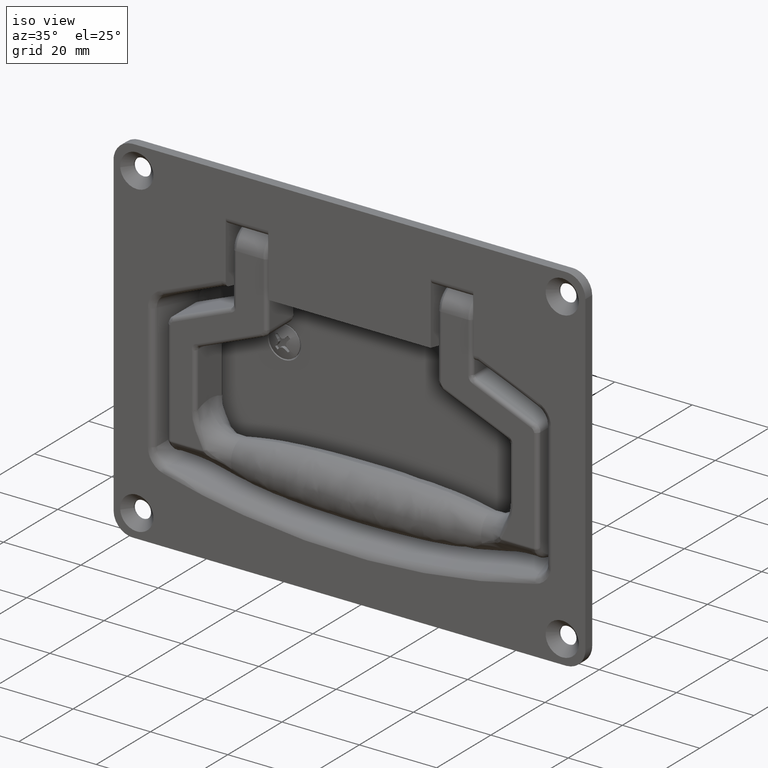
[diagram: clean part render]
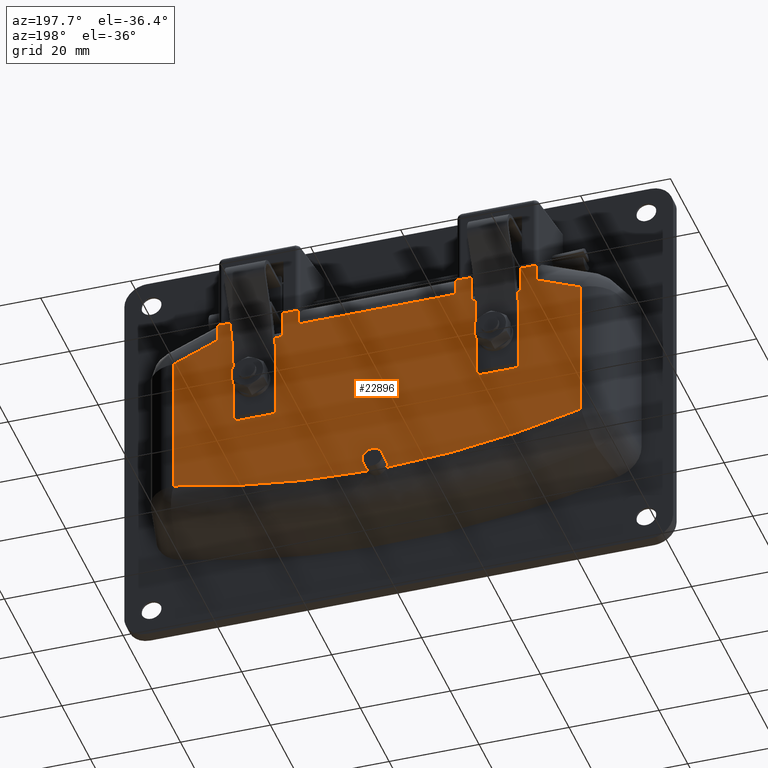
[diagram: tour spotlight — one face highlighted and labeled with its STEP entity id]
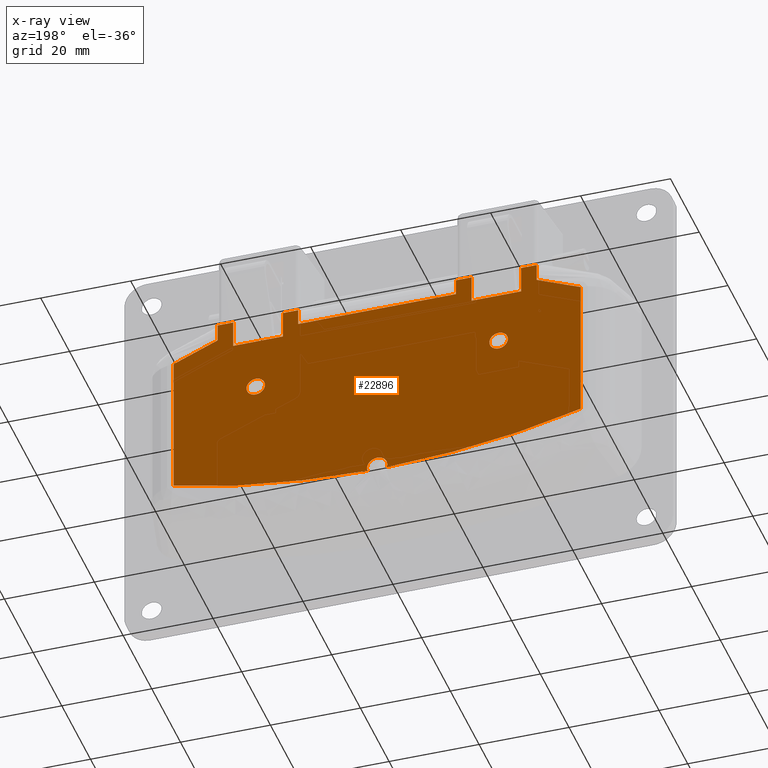
[diagram: x-ray of the same camera — body ghosted, this tour face saturated]
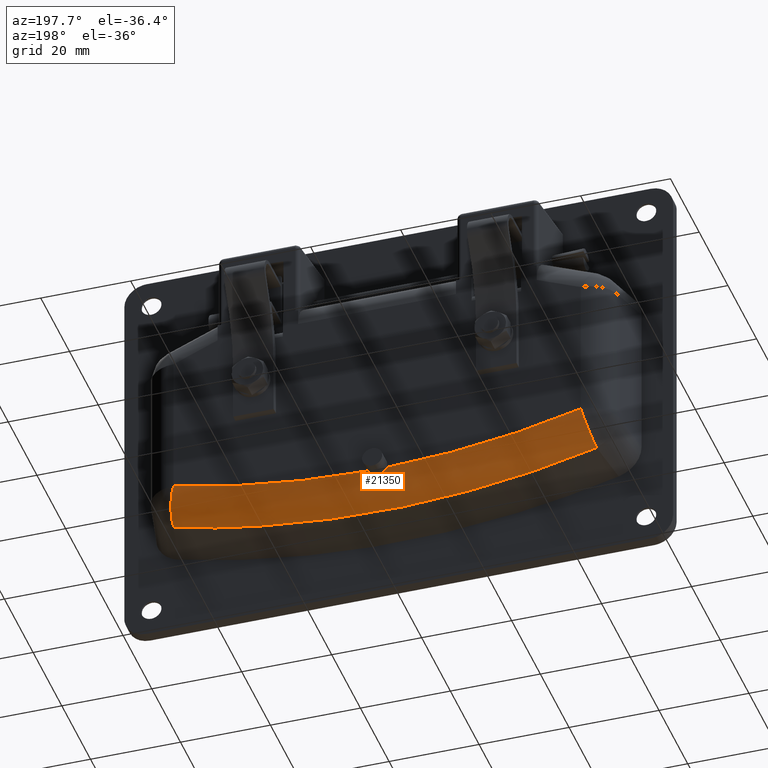
[diagram: tour spotlight — one face highlighted and labeled with its STEP entity id]
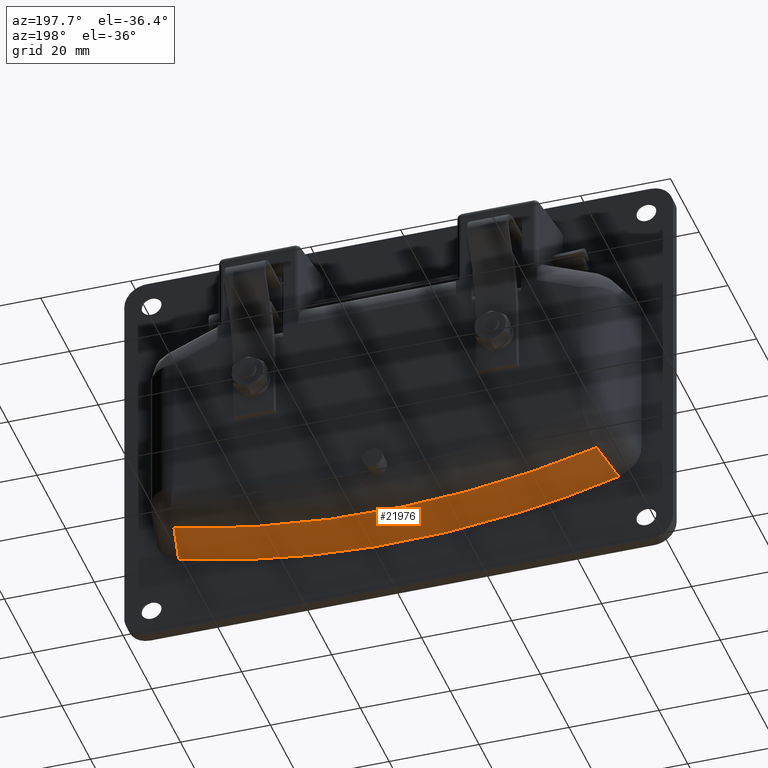
[diagram: tour spotlight — one face highlighted and labeled with its STEP entity id]
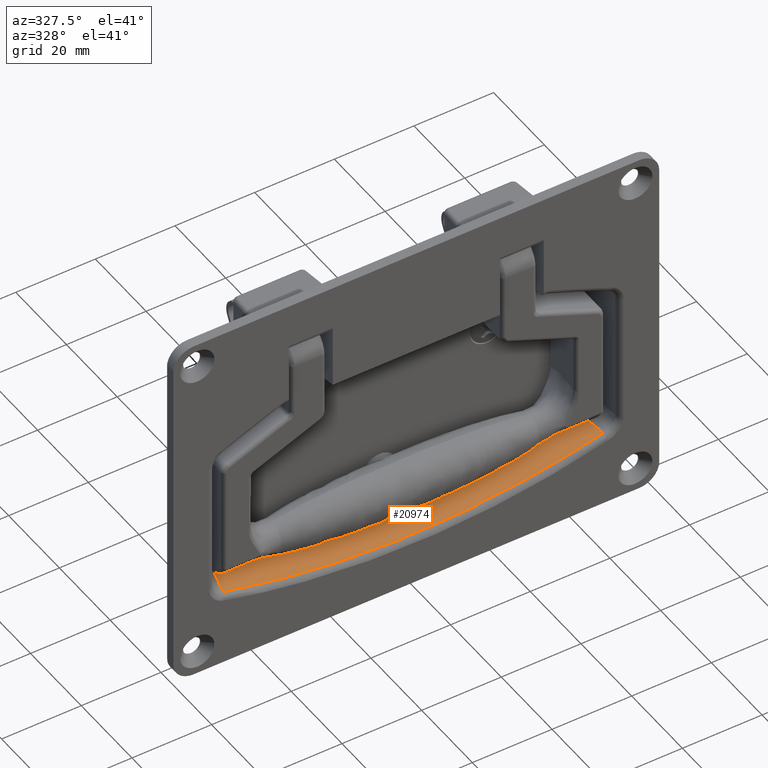
[diagram: tour spotlight — one face highlighted and labeled with its STEP entity id]
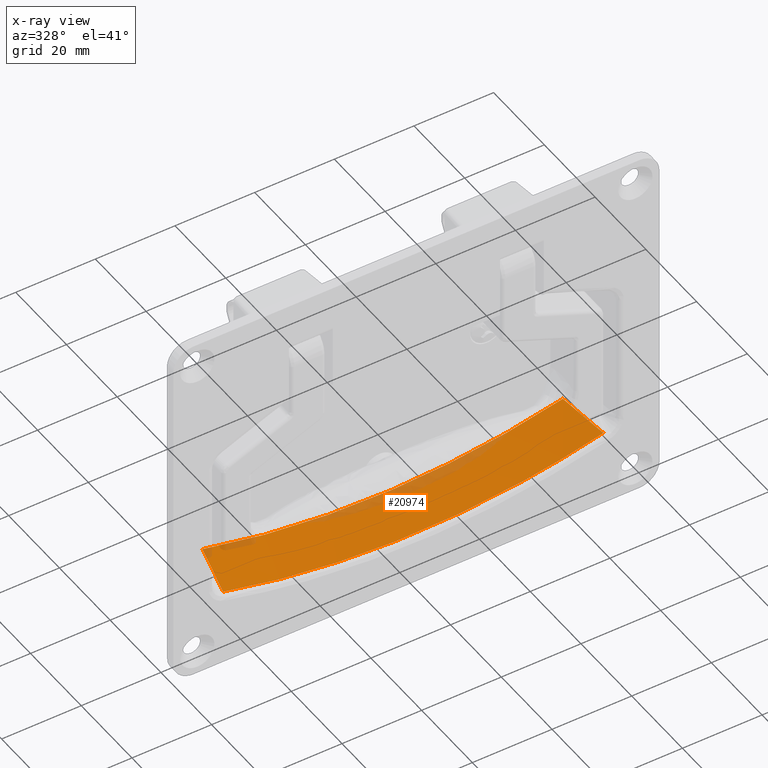
[diagram: x-ray of the same camera — body ghosted, this tour face saturated]
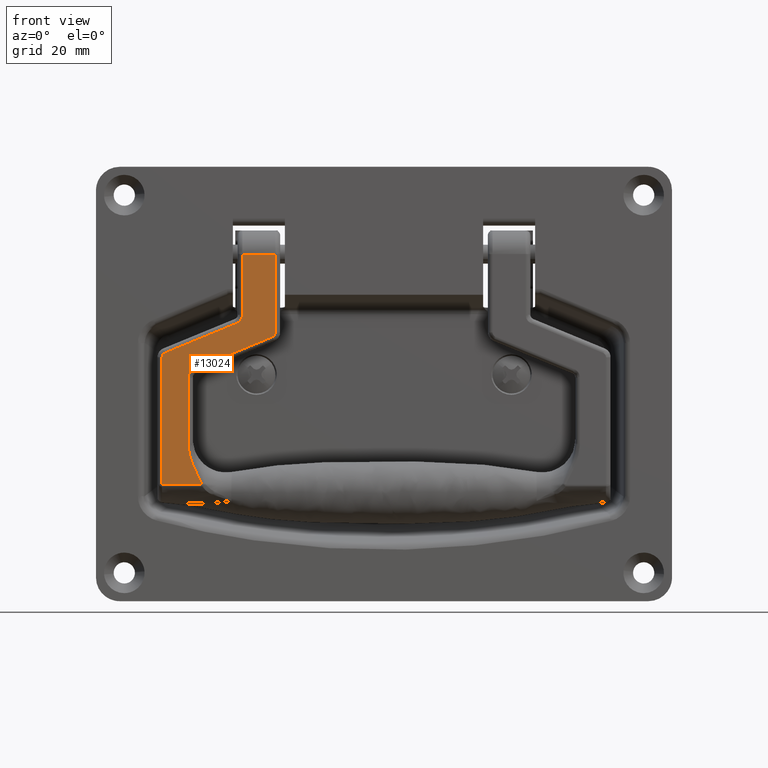
[diagram: tour spotlight — one face highlighted and labeled with its STEP entity id]
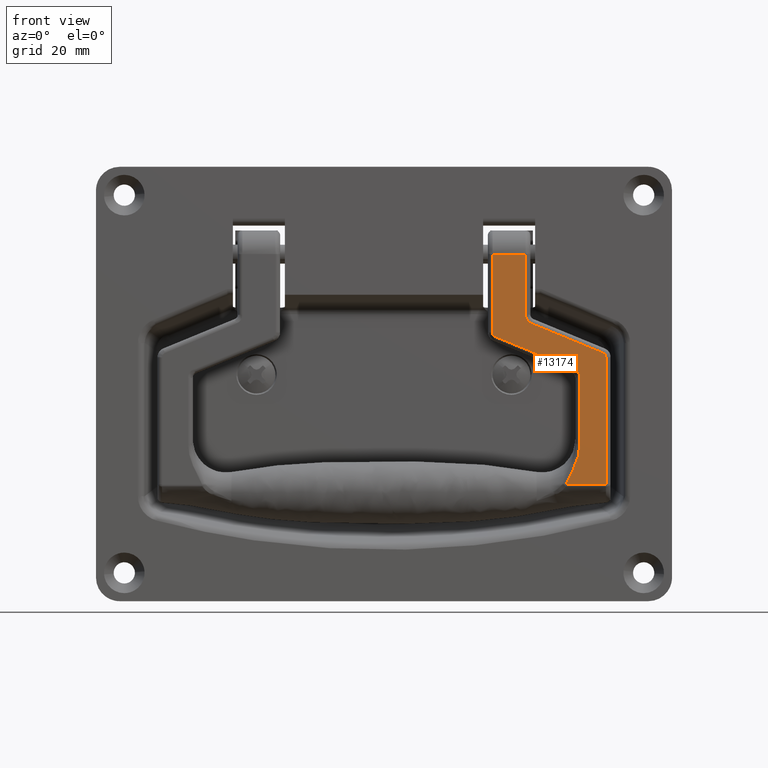
[diagram: tour spotlight — one face highlighted and labeled with its STEP entity id]
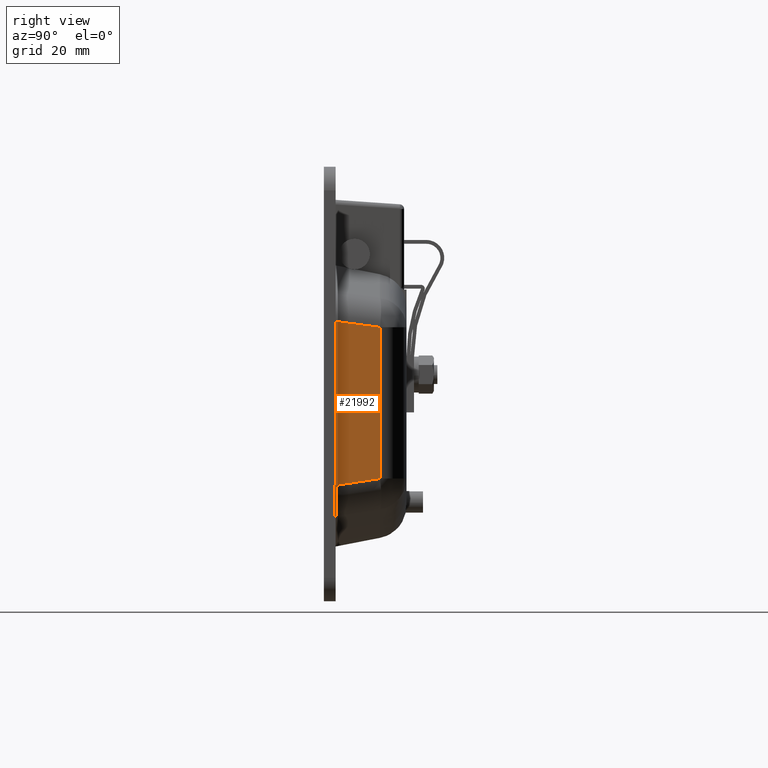
[diagram: tour spotlight — one face highlighted and labeled with its STEP entity id]
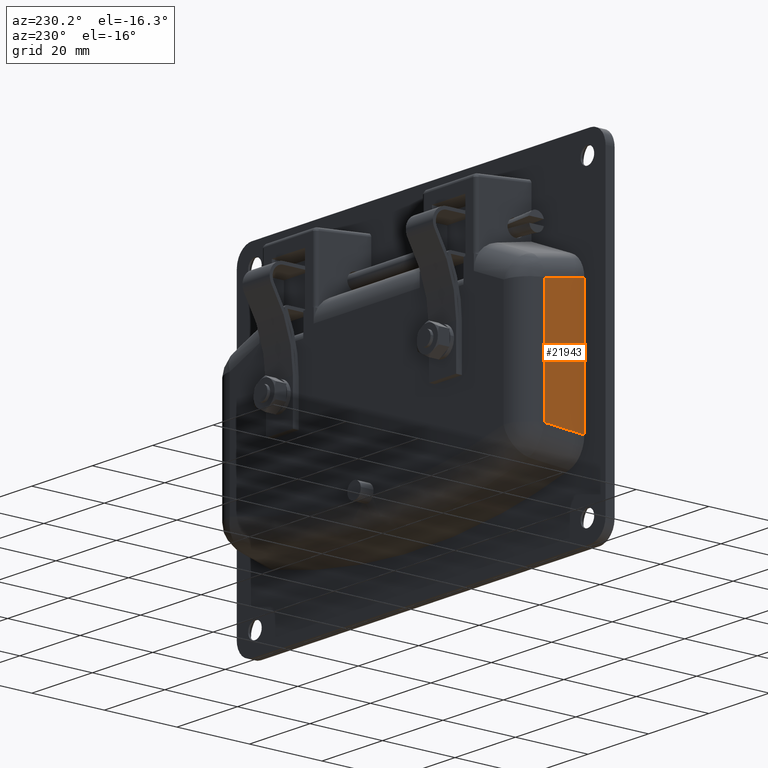
[diagram: tour spotlight — one face highlighted and labeled with its STEP entity id]
A machine part: a face-by-face anatomy tour. The part has 491 B-rep faces; the first image is the clean iso view, then the 8 largest visible faces are spotlighted one at a time (largest first), each with its STEP entity span.

Face 1 — auxiliary view, entity #22896. An x-ray twin of the same camera follows (body ghosted, this face saturated) — the face is partly hidden behind the body. In plain terms, the highlighted face is a freeform B-spline surface patch.
Definition (entity closure, byte-faithful):
#14040=CARTESIAN_POINT('',(11.0,29.043680534102361,-25.660861146884439));
#14041=VERTEX_POINT('',#14040);
#14047=CARTESIAN_POINT('',(11.0,27.0,-23.450019999999999));
#14048=VERTEX_POINT('',#14047);
#14049=CARTESIAN_POINT('',(10.999999999999998,29.043680534102357,-25.660861146884432));
#14050=CARTESIAN_POINT('',(10.999999999999998,29.049999999999997,-25.580564720011061));
#14051=CARTESIAN_POINT('',(11.0,29.050000000000001,-25.500019999999999));
#14052=CARTESIAN_POINT('',(11.0,29.050000000000008,-23.450019999999999));
#14053=CARTESIAN_POINT('',(11.0,27.0,-23.450019999999999));
#14061=(BOUNDED_CURVE()B_SPLINE_CURVE(2,(#14049,#14050,#14051,#14052,#14053),.UNSPECIFIED.,.F.,.U.)B_SPLINE_CURVE_WITH_KNOTS((3,2,3),(0.736331300525006,0.750000000000000,1.0),.UNSPECIFIED.)CURVE()GEOMETRIC_REPRESENTATION_ITEM()RATIONAL_B_SPLINE_CURVE((0.969723355946926,0.983986122455101,1.0,0.707106781186547,1.0))REPRESENTATION_ITEM(''));
#14062=EDGE_CURVE('',#14041,#14048,#14061,.T.);
#14064=CARTESIAN_POINT('',(11.0,24.956319465897639,-25.339178853115570));
#14065=VERTEX_POINT('',#14064);
#14066=CARTESIAN_POINT('',(11.0,27.0,-23.450019999999999));
#14067=CARTESIAN_POINT('',(11.0,25.104999493295594,-23.450020000000006));
#14068=CARTESIAN_POINT('',(11.000000000000002,24.956319465897643,-25.339178853115570));
#14076=(BOUNDED_CURVE()B_SPLINE_CURVE(2,(#14066,#14067,#14068),.UNSPECIFIED.,.F.,.U.)B_SPLINE_CURVE_WITH_KNOTS((3,3),(0.0,0.236331300525006),.UNSPECIFIED.)CURVE()GEOMETRIC_REPRESENTATION_ITEM()RATIONAL_B_SPLINE_CURVE((1.0,0.723120658731446,0.969723355946927))REPRESENTATION_ITEM(''));
#14077=EDGE_CURVE('',#14048,#14065,#14076,.T.);
#14107=CARTESIAN_POINT('',(11.0,27.0,-27.550020000000000));
#14108=VERTEX_POINT('',#14107);
#14109=CARTESIAN_POINT('',(11.0,24.956319465897639,-25.339178853115577));
#14110=CARTESIAN_POINT('',(11.000000000000005,24.949999999999999,-25.419475279988951));
#14111=CARTESIAN_POINT('',(11.0,24.949999999999999,-25.500019999999999));
#14112=CARTESIAN_POINT('',(11.0,24.949999999999999,-27.550020000000004));
#14113=CARTESIAN_POINT('',(11.0,27.0,-27.550020000000000));
#14121=(BOUNDED_CURVE()B_SPLINE_CURVE(2,(#14109,#14110,#14111,#14112,#14113),.UNSPECIFIED.,.F.,.U.)B_SPLINE_CURVE_WITH_KNOTS((3,2,3),(0.236331300525006,0.250000000000000,0.500000000000000),.UNSPECIFIED.)CURVE()GEOMETRIC_REPRESENTATION_ITEM()RATIONAL_B_SPLINE_CURVE((0.969723355946927,0.983986122455101,1.0,0.707106781186547,1.0))REPRESENTATION_ITEM(''));
#14122=EDGE_CURVE('',#14065,#14108,#14121,.T.);
#14124=CARTESIAN_POINT('',(11.0,27.0,-27.550020000000000));
#14125=CARTESIAN_POINT('',(10.999999999999998,28.895000506704402,-27.550020000000000));
#14126=CARTESIAN_POINT('',(11.000000000000005,29.043680534102354,-25.660861146884439));
#14134=(BOUNDED_CURVE()B_SPLINE_CURVE(2,(#14124,#14125,#14126),.UNSPECIFIED.,.F.,.U.)B_SPLINE_CURVE_WITH_KNOTS((3,3),(0.500000000000000,0.736331300525006),.UNSPECIFIED.)CURVE()GEOMETRIC_REPRESENTATION_ITEM()RATIONAL_B_SPLINE_CURVE((1.0,0.723120658731447,0.969723355946926))REPRESENTATION_ITEM(''));
#14135=EDGE_CURVE('',#14108,#14041,#14134,.T.);
#16112=CARTESIAN_POINT('',(11.0,-29.046176336756091,-25.625169506189248));
#16113=VERTEX_POINT('',#16112);
#16119=CARTESIAN_POINT('',(11.0,-27.0,-27.550020000000000));
#16120=VERTEX_POINT('',#16119);
#16121=CARTESIAN_POINT('',(11.0,-27.0,-27.550020000000000));
#16122=CARTESIAN_POINT('',(10.999999999999998,-28.928447436887044,-27.550019999999989));
#16123=CARTESIAN_POINT('',(11.000000000000004,-29.046176336756094,-25.625169506189241));
#16131=(BOUNDED_CURVE()B_SPLINE_CURVE(2,(#16121,#16122,#16123),.UNSPECIFIED.,.F.,.U.)B_SPLINE_CURVE_WITH_KNOTS((3,3),(0.500000000000000,0.739332962217889),.UNSPECIFIED.)CURVE()GEOMETRIC_REPRESENTATION_ITEM()RATIONAL_B_SPLINE_CURVE((1.0,0.719603993311377,0.976072041621594))REPRESENTATION_ITEM(''));
#16132=EDGE_CURVE('',#16120,#16113,#16131,.T.);
#16134=CARTESIAN_POINT('',(11.0,-24.964330470956551,-25.258049818936239));
#16135=VERTEX_POINT('',#16134);
#16136=CARTESIAN_POINT('',(11.000000000000004,-24.964330470956551,-25.258049818936236));
#16137=CARTESIAN_POINT('',(11.000000000000004,-24.949999999999999,-25.378610554695992));
#16138=CARTESIAN_POINT('',(11.0,-24.949999999999999,-25.500019999999999));
#16139=CARTESIAN_POINT('',(11.0,-24.949999999999999,-27.550020000000004));
#16140=CARTESIAN_POINT('',(11.0,-27.0,-27.550020000000000));
#16148=(BOUNDED_CURVE()B_SPLINE_CURVE(2,(#16136,#16137,#16138,#16139,#16140),.UNSPECIFIED.,.F.,.U.)B_SPLINE_CURVE_WITH_KNOTS((3,2,3),(0.229562473512753,0.250000000000000,0.500000000000000),.UNSPECIFIED.)CURVE()GEOMETRIC_REPRESENTATION_ITEM()RATIONAL_B_SPLINE_CURVE((0.956026754182220,0.976055948330261,1.0,0.707106781186547,1.0))REPRESENTATION_ITEM(''));
#16149=EDGE_CURVE('',#16135,#16120,#16148,.T.);
#16179=CARTESIAN_POINT('',(11.0,-27.0,-23.450019999999999));
#16180=VERTEX_POINT('',#16179);
#16181=CARTESIAN_POINT('',(11.0,-27.0,-23.450019999999999));
#16182=CARTESIAN_POINT('',(10.999999999999998,-25.179242221831061,-23.450020000000006));
#16183=CARTESIAN_POINT('',(11.000000000000004,-24.964330470956551,-25.258049818936236));
#16191=(BOUNDED_CURVE()B_SPLINE_CURVE(2,(#16181,#16182,#16183),.UNSPECIFIED.,.F.,.U.)B_SPLINE_CURVE_WITH_KNOTS((3,3),(0.0,0.229562473512753),.UNSPECIFIED.)CURVE()GEOMETRIC_REPRESENTATION_ITEM()RATIONAL_B_SPLINE_CURVE((1.0,0.731050832856287,0.956026754182220))REPRESENTATION_ITEM(''));
#16192=EDGE_CURVE('',#16180,#16135,#16191,.T.);
#16194=CARTESIAN_POINT('',(11.000000000000005,-29.046176336756094,-25.625169506189241));
#16195=CARTESIAN_POINT('',(10.999999999999995,-29.050000000000004,-25.562653164905289));
#16196=CARTESIAN_POINT('',(11.0,-29.050000000000001,-25.500019999999999));
#16197=CARTESIAN_POINT('',(11.0,-29.050000000000008,-23.450019999999999));
#16198=CARTESIAN_POINT('',(11.0,-27.0,-23.450019999999999));
#16206=(BOUNDED_CURVE()B_SPLINE_CURVE(2,(#16194,#16195,#16196,#16197,#16198),.UNSPECIFIED.,.F.,.U.)B_SPLINE_CURVE_WITH_KNOTS((3,2,3),(0.739332962217888,0.750000000000000,1.0),.UNSPECIFIED.)CURVE()GEOMETRIC_REPRESENTATION_ITEM()RATIONAL_B_SPLINE_CURVE((0.976072041621592,0.987502787875170,1.0,0.707106781186547,1.0))REPRESENTATION_ITEM(''));
#16207=EDGE_CURVE('',#16113,#16180,#16206,.T.);
#16305=CARTESIAN_POINT('',(11.0,1.725042636730363,-51.055448892748103));
#16306=VERTEX_POINT('',#16305);
#16312=CARTESIAN_POINT('',(11.0,-2.121691923408510,-53.248948183883812));
#16313=VERTEX_POINT('',#16312);
#16314=CARTESIAN_POINT('',(11.0,-2.121691923408483,-53.248948183883797));
#16315=CARTESIAN_POINT('',(11.0,-2.675498924877017,-51.680070833718247));
#16316=CARTESIAN_POINT('',(11.0,-1.337749443036334,-50.690876889856369));
#16317=CARTESIAN_POINT('',(11.0,0.000000038804349,-49.701682945994492));
#16318=CARTESIAN_POINT('',(11.0,1.337749493210727,-50.690876926957522));
#16319=CARTESIAN_POINT('',(11.000000000000004,1.553094030908291,-50.850112664129412));
#16320=CARTESIAN_POINT('',(10.999999999999996,1.725042636730363,-51.055448892748103));
#16328=(BOUNDED_CURVE()B_SPLINE_CURVE(2,(#16314,#16315,#16316,#16317,#16318,#16319,#16320),.UNSPECIFIED.,.F.,.U.)B_SPLINE_CURVE_WITH_KNOTS((3,2,2,3),(0.0,0.333333333333333,0.666666666666667,0.730882323054241),.UNSPECIFIED.)CURVE()GEOMETRIC_REPRESENTATION_ITEM()RATIONAL_B_SPLINE_CURVE((1.0,0.804054707374691,1.0,0.804054707374691,1.0,0.962251733254031,0.939047644867577))REPRESENTATION_ITEM(''));
#16329=EDGE_CURVE('',#16313,#16306,#16328,.T.);
#16418=CARTESIAN_POINT('',(11.0,2.121691902637360,-53.248948242726797));
#16419=VERTEX_POINT('',#16418);
#16429=CARTESIAN_POINT('',(11.0,1.725042636730363,-51.055448892748103));
#16430=CARTESIAN_POINT('',(11.0,2.548759969499615,-52.039109154196908));
#16431=CARTESIAN_POINT('',(11.0,2.121691902637333,-53.248948242726797));
#16439=(BOUNDED_CURVE()B_SPLINE_CURVE(2,(#16429,#16430,#16431),.UNSPECIFIED.,.F.,.U.)B_SPLINE_CURVE_WITH_KNOTS((3,3),(0.730882323054241,1.0),.UNSPECIFIED.)CURVE()GEOMETRIC_REPRESENTATION_ITEM()RATIONAL_B_SPLINE_CURVE((0.939047644867576,0.841802974120659,1.0))REPRESENTATION_ITEM(''));
#16440=EDGE_CURVE('',#16306,#16419,#16439,.T.);
#20456=CARTESIAN_POINT('',(11.0,31.999033365554549,-13.639607805437221));
#20457=VERTEX_POINT('',#20456);
#20478=CARTESIAN_POINT('',(11.0,20.999033365554549,-13.639607805437221));
#20479=VERTEX_POINT('',#20478);
#20493=CARTESIAN_POINT('',(11.0,31.999033365554549,-13.639607805437221));
#20494=CARTESIAN_POINT('',(11.0,20.999033365554549,-13.639607805437221));
#20495=QUASI_UNIFORM_CURVE('',1,(#20493,#20494),.UNSPECIFIED.,.F.,.U.);
#20496=EDGE_CURVE('',#20457,#20479,#20495,.T.);
#20517=CARTESIAN_POINT('',(11.0,-21.0,-13.639607805437221));
#20518=VERTEX_POINT('',#20517);
#20539=CARTESIAN_POINT('',(11.0,-32.0,-13.639607805437221));
#20540=VERTEX_POINT('',#20539);
#20554=CARTESIAN_POINT('',(11.0,-21.0,-13.639607805437221));
#20555=CARTESIAN_POINT('',(11.0,-32.0,-13.639607805437221));
#20556=QUASI_UNIFORM_CURVE('',1,(#20554,#20555),.UNSPECIFIED.,.F.,.U.);
#20557=EDGE_CURVE('',#20518,#20540,#20556,.T.);
#20599=CARTESIAN_POINT('',(11.0,-32.0,-7.500000000000090));
#20600=VERTEX_POINT('',#20599);
#20606=CARTESIAN_POINT('',(11.0,-32.0,-13.639607805437221));
#20607=CARTESIAN_POINT('',(11.0,-32.0,-7.500000000000090));
#20608=QUASI_UNIFORM_CURVE('',1,(#20606,#20607),.UNSPECIFIED.,.F.,.U.);
#20609=EDGE_CURVE('',#20540,#20600,#20608,.T.);
#20640=CARTESIAN_POINT('',(11.0,-21.0,-7.500000000000090));
#20641=VERTEX_POINT('',#20640);
#20642=CARTESIAN_POINT('',(11.0,-21.0,-13.639607805437221));
#20643=CARTESIAN_POINT('',(11.0,-21.0,-7.500000000000090));
#20644=QUASI_UNIFORM_CURVE('',1,(#20642,#20643),.UNSPECIFIED.,.F.,.U.);
#20645=EDGE_CURVE('',#20518,#20641,#20644,.T.);
#20753=CARTESIAN_POINT('',(11.0,20.999033365554549,-7.500000000000090));
#20754=VERTEX_POINT('',#20753);
#20760=CARTESIAN_POINT('',(11.0,20.999033365554549,-13.639607805437221));
#20761=CARTESIAN_POINT('',(11.0,20.999033365554549,-7.500000000000090));
#20762=QUASI_UNIFORM_CURVE('',1,(#20760,#20761),.UNSPECIFIED.,.F.,.U.);
#20763=EDGE_CURVE('',#20479,#20754,#20762,.T.);
#20792=CARTESIAN_POINT('',(11.0,31.999033365554549,-7.500000000000090));
#20793=VERTEX_POINT('',#20792);
#20794=CARTESIAN_POINT('',(11.0,31.999033365554549,-13.639607805437221));
#20795=CARTESIAN_POINT('',(11.0,31.999033365554549,-7.500000000000090));
#20796=QUASI_UNIFORM_CURVE('',1,(#20794,#20795),.UNSPECIFIED.,.F.,.U.);
#20797=EDGE_CURVE('',#20457,#20793,#20796,.T.);
#20896=CARTESIAN_POINT('',(11.0,-35.465034498850102,-7.500000000000000));
#20897=VERTEX_POINT('',#20896);
#20903=CARTESIAN_POINT('',(11.0,-32.0,-7.500000000000090));
#20904=CARTESIAN_POINT('',(11.0,-35.465034498850102,-7.500000000000000));
#20905=QUASI_UNIFORM_CURVE('',1,(#20903,#20904),.UNSPECIFIED.,.F.,.U.);
#20906=EDGE_CURVE('',#20600,#20897,#20905,.T.);
#20923=CARTESIAN_POINT('',(10.999999999999879,17.533965534482100,-7.500000000000000));
#20924=VERTEX_POINT('',#20923);
#20930=CARTESIAN_POINT('',(11.0,20.999033365554549,-7.500000000000090));
#20931=CARTESIAN_POINT('',(10.999999999999879,17.533965534482100,-7.500000000000000));
#20932=QUASI_UNIFORM_CURVE('',1,(#20930,#20931),.UNSPECIFIED.,.F.,.U.);
#20933=EDGE_CURVE('',#20754,#20924,#20932,.T.);
#21195=CARTESIAN_POINT('',(11.0,45.261371192773900,-47.512434265152002));
#21196=VERTEX_POINT('',#21195);
#21243=CARTESIAN_POINT('',(11.0,45.261371192773900,-15.492439122219800));
#21244=VERTEX_POINT('',#21243);
#21258=CARTESIAN_POINT('',(11.0,45.261371192773900,-47.512434265152002));
#21259=CARTESIAN_POINT('',(11.0,45.261371192773900,-15.492439122219800));
#21260=QUASI_UNIFORM_CURVE('',1,(#21258,#21259),.UNSPECIFIED.,.F.,.U.);
#21261=EDGE_CURVE('',#21196,#21244,#21260,.T.);
#21291=CARTESIAN_POINT('',(11.0,-45.261361192773997,-47.512435556146187));
#21292=VERTEX_POINT('',#21291);
#21293=CARTESIAN_POINT('',(11.0,-45.261361192774039,-47.512435556146258));
#21294=CARTESIAN_POINT('',(11.000000000000002,-24.038777014652180,-52.992081545554235));
#21295=CARTESIAN_POINT('',(11.0,-2.121691923408633,-53.248948183883932));
#21303=(BOUNDED_CURVE()B_SPLINE_CURVE(2,(#21293,#21294,#21295),.UNSPECIFIED.,.F.,.U.)CURVE()GEOMETRIC_REPRESENTATION_ITEM()QUASI_UNIFORM_CURVE()RATIONAL_B_SPLINE_CURVE((1.0,0.992751012131660,1.0))REPRESENTATION_ITEM(''));
#21304=EDGE_CURVE('',#21292,#16313,#21303,.T.);
#21335=CARTESIAN_POINT('',(11.0,2.121691902637362,-53.248948242726911));
#21336=CARTESIAN_POINT('',(10.999999999999998,24.038782167839138,-52.992082151690873));
#21337=CARTESIAN_POINT('',(11.0,45.261371192773929,-47.512434265152123));
#21345=(BOUNDED_CURVE()B_SPLINE_CURVE(2,(#21335,#21336,#21337),.UNSPECIFIED.,.F.,.U.)CURVE()GEOMETRIC_REPRESENTATION_ITEM()QUASI_UNIFORM_CURVE()RATIONAL_B_SPLINE_CURVE((1.0,0.992751008750914,1.0))REPRESENTATION_ITEM(''));
#21346=EDGE_CURVE('',#16419,#21196,#21345,.T.);
#21522=CARTESIAN_POINT('',(11.0,35.465034498850152,-11.410677190013240));
#21523=VERTEX_POINT('',#21522);
#21537=CARTESIAN_POINT('',(11.0,45.261371192773900,-15.492439122219800));
#21538=CARTESIAN_POINT('',(11.0,35.465034498850152,-11.410677190013240));
#21539=QUASI_UNIFORM_CURVE('',1,(#21537,#21538),.UNSPECIFIED.,.F.,.U.);
#21540=EDGE_CURVE('',#21244,#21523,#21539,.T.);
#21580=CARTESIAN_POINT('',(11.0,-45.261361192773997,-15.492433401015450));
#21581=VERTEX_POINT('',#21580);
#21603=CARTESIAN_POINT('',(11.0,-45.261361192773997,-15.492433401015450));
#21604=CARTESIAN_POINT('',(11.0,-45.261361192773997,-47.512435556146187));
#21605=QUASI_UNIFORM_CURVE('',1,(#21603,#21604),.UNSPECIFIED.,.F.,.U.);
#21606=EDGE_CURVE('',#21581,#21292,#21605,.T.);
#21795=CARTESIAN_POINT('',(11.0,-35.465034498850102,-11.410623252175601));
#21796=VERTEX_POINT('',#21795);
#21831=CARTESIAN_POINT('',(11.0,-35.465034498850102,-11.410623252175601));
#21832=CARTESIAN_POINT('',(11.0,-45.261361192773997,-15.492433401015450));
#21833=QUASI_UNIFORM_CURVE('',1,(#21831,#21832),.UNSPECIFIED.,.F.,.U.);
#21834=EDGE_CURVE('',#21796,#21581,#21833,.T.);
#22529=CARTESIAN_POINT('',(11.0,-17.533965534482149,-11.113638807226080));
#22530=VERTEX_POINT('',#22529);
#22544=CARTESIAN_POINT('',(11.0,17.533965534482149,-11.113638807226080));
#22545=VERTEX_POINT('',#22544);
#22546=CARTESIAN_POINT('',(11.0,17.533965534482149,-11.113638807226080));
#22547=CARTESIAN_POINT('',(11.0,-17.533965534482149,-11.113638807226080));
#22548=QUASI_UNIFORM_CURVE('',1,(#22546,#22547),.UNSPECIFIED.,.F.,.U.);
#22549=EDGE_CURVE('',#22545,#22530,#22548,.T.);
#22595=CARTESIAN_POINT('',(11.0,35.465034498850152,-7.500000000000000));
#22596=VERTEX_POINT('',#22595);
#22602=CARTESIAN_POINT('',(11.0,35.465034498850152,-11.410677190013240));
#22603=CARTESIAN_POINT('',(11.0,35.465034498850152,-7.500000000000000));
#22604=QUASI_UNIFORM_CURVE('',1,(#22602,#22603),.UNSPECIFIED.,.F.,.U.);
#22605=EDGE_CURVE('',#21523,#22596,#22604,.T.);
#22698=CARTESIAN_POINT('',(11.0,35.465034498850152,-7.500000000000000));
#22699=CARTESIAN_POINT('',(11.0,31.999033365554549,-7.500000000000090));
#22700=QUASI_UNIFORM_CURVE('',1,(#22698,#22699),.UNSPECIFIED.,.F.,.U.);
#22701=EDGE_CURVE('',#22596,#20793,#22700,.T.);
#22724=CARTESIAN_POINT('',(10.999999999999879,-17.533965534482000,-7.500000000000000));
#22725=VERTEX_POINT('',#22724);
#22738=CARTESIAN_POINT('',(10.999999999999879,-17.533965534482000,-7.500000000000000));
#22739=CARTESIAN_POINT('',(11.0,-21.0,-7.500000000000090));
#22740=QUASI_UNIFORM_CURVE('',1,(#22738,#22739),.UNSPECIFIED.,.F.,.U.);
#22741=EDGE_CURVE('',#22725,#20641,#22740,.T.);
#22842=CARTESIAN_POINT('',(11.0,-49.782970650218850,-55.534107259863873));
#22843=CARTESIAN_POINT('',(11.0,49.782983887563937,-55.534107259863873));
#22844=CARTESIAN_POINT('',(11.0,-49.782970650218850,-5.214838937725570));
#22845=CARTESIAN_POINT('',(11.0,49.782983887563937,-5.214838937725570));
#22846=B_SPLINE_SURFACE_WITH_KNOTS('',1,1,((#22842,#22844),(#22843,#22845)),.UNSPECIFIED.,.F.,.F.,.U.,(2,2),(2,2),(0.0,99.565954537782787),(0.0,50.319268322138299),.UNSPECIFIED.);
#22847=ORIENTED_EDGE('',*,*,#20557,.T.);
#22848=ORIENTED_EDGE('',*,*,#20609,.T.);
#22849=ORIENTED_EDGE('',*,*,#20906,.T.);
#22850=CARTESIAN_POINT('',(11.0,-35.465034498850102,-11.410623252175601));
#22851=CARTESIAN_POINT('',(11.0,-35.465034498850102,-7.500000000000000));
#22852=QUASI_UNIFORM_CURVE('',1,(#22850,#22851),.UNSPECIFIED.,.F.,.U.);
#22853=EDGE_CURVE('',#21796,#20897,#22852,.T.);
#22854=ORIENTED_EDGE('',*,*,#22853,.F.);
#22855=ORIENTED_EDGE('',*,*,#21834,.T.);
#22856=ORIENTED_EDGE('',*,*,#21606,.T.);
#22857=ORIENTED_EDGE('',*,*,#21304,.T.);
#22858=ORIENTED_EDGE('',*,*,#16329,.T.);
#22859=ORIENTED_EDGE('',*,*,#16440,.T.);
#22860=ORIENTED_EDGE('',*,*,#21346,.T.);
#22861=ORIENTED_EDGE('',*,*,#21261,.T.);
#22862=ORIENTED_EDGE('',*,*,#21540,.T.);
#22863=ORIENTED_EDGE('',*,*,#22605,.T.);
#22864=ORIENTED_EDGE('',*,*,#22701,.T.);
#22865=ORIENTED_EDGE('',*,*,#20797,.F.);
#22866=ORIENTED_EDGE('',*,*,#20496,.T.);
#22867=ORIENTED_EDGE('',*,*,#20763,.T.);
#22868=ORIENTED_EDGE('',*,*,#20933,.T.);
#22869=CARTESIAN_POINT('',(11.0,17.533965534482149,-11.113638807226080));
#22870=CARTESIAN_POINT('',(10.999999999999879,17.533965534482100,-7.500000000000000));
#22871=QUASI_UNIFORM_CURVE('',1,(#22869,#22870),.UNSPECIFIED.,.F.,.U.);
#22872=EDGE_CURVE('',#22545,#20924,#22871,.T.);
#22873=ORIENTED_EDGE('',*,*,#22872,.F.);
#22874=ORIENTED_EDGE('',*,*,#22549,.T.);
#22875=CARTESIAN_POINT('',(11.0,-17.533965534482149,-11.113638807226080));
#22876=CARTESIAN_POINT('',(10.999999999999879,-17.533965534482000,-7.500000000000000));
#22877=QUASI_UNIFORM_CURVE('',1,(#22875,#22876),.UNSPECIFIED.,.F.,.U.);
#22878=EDGE_CURVE('',#22530,#22725,#22877,.T.);
#22879=ORIENTED_EDGE('',*,*,#22878,.T.);
#22880=ORIENTED_EDGE('',*,*,#22741,.T.);
#22881=ORIENTED_EDGE('',*,*,#20645,.F.);
#22882=EDGE_LOOP('',(#22847,#22848,#22849,#22854,#22855,#22856,#22857,#22858,#22859,#22860,#22861,#22862,#22863,#22864,#22865,#22866,#22867,#22868,#22873,#22874,#22879,#22880,#22881));
#22883=FACE_OUTER_BOUND('',#22882,.T.);
#22884=ORIENTED_EDGE('',*,*,#16132,.T.);
#22885=ORIENTED_EDGE('',*,*,#16207,.T.);
#22886=ORIENTED_EDGE('',*,*,#16192,.T.);
#22887=ORIENTED_EDGE('',*,*,#16149,.T.);
#22888=EDGE_LOOP('',(#22884,#22885,#22886,#22887));
#22889=FACE_BOUND('',#22888,.T.);
#22890=ORIENTED_EDGE('',*,*,#14135,.F.);
#22891=ORIENTED_EDGE('',*,*,#14122,.F.);
#22892=ORIENTED_EDGE('',*,*,#14077,.F.);
#22893=ORIENTED_EDGE('',*,*,#14062,.F.);
#22894=EDGE_LOOP('',(#22890,#22891,#22892,#22893));
#22895=FACE_BOUND('',#22894,.T.);
#22896=ADVANCED_FACE('',(#22883,#22889,#22895),#22846,.T.);

Face 2 — auxiliary view, entity #21350. In plain terms, the highlighted face is a freeform B-spline surface patch.
Definition (entity closure, byte-faithful):
#16312=CARTESIAN_POINT('',(11.0,-2.121691923408510,-53.248948183883812));
#16313=VERTEX_POINT('',#16312);
#16331=CARTESIAN_POINT('',(10.975381755558750,1.808244774100573,-53.838936945652790));
#16332=VERTEX_POINT('',#16331);
#16333=CARTESIAN_POINT('',(11.0,-2.121691923408483,-53.248948183883797));
#16334=CARTESIAN_POINT('',(11.0,-2.083340429531328,-53.357593957464353));
#16335=CARTESIAN_POINT('',(10.997493357739630,-2.036679594184363,-53.463355614106909));
#16336=CARTESIAN_POINT('',(10.988273750240740,-1.926091865199731,-53.668883200071633));
#16337=CARTESIAN_POINT('',(10.981674276323290,-1.863455200396986,-53.766209314623197));
#16338=CARTESIAN_POINT('',(10.965856715343790,-1.724500145399460,-53.949776038166711));
#16339=CARTESIAN_POINT('',(10.956627011550051,-1.648112429811171,-54.036142981451079));
#16340=CARTESIAN_POINT('',(10.941711892890380,-1.522817055048689,-54.157379159107087));
#16341=CARTESIAN_POINT('',(10.936600842895560,-1.479579240650608,-54.196073674828469));
#16342=CARTESIAN_POINT('',(10.926336760719710,-1.390819811074591,-54.269587774859687));
#16343=CARTESIAN_POINT('',(10.921172461981190,-1.345205154453936,-54.304497708972733));
#16344=CARTESIAN_POINT('',(10.905813981358371,-1.204693542604999,-54.403777567216160));
#16345=CARTESIAN_POINT('',(10.895754965436350,-1.106151713764073,-54.462731626350312));
#16346=CARTESIAN_POINT('',(10.881810196229591,-0.950779779812955,-54.540064845301103));
#16347=CARTESIAN_POINT('',(10.877339327669681,-0.897528054462019,-54.564048368210372));
#16348=CARTESIAN_POINT('',(10.869054577920529,-0.790182941616886,-54.607477922455161));
#16349=CARTESIAN_POINT('',(10.865224280078690,-0.735932045784757,-54.627019624108648));
#16350=CARTESIAN_POINT('',(10.854809896743250,-0.571470749349230,-54.679255609620817));
#16351=CARTESIAN_POINT('',(10.849305618979381,-0.459561380424323,-54.705598696343912));
#16352=CARTESIAN_POINT('',(10.843690101234470,-0.288222912175841,-54.732211486580013));
#16353=CARTESIAN_POINT('',(10.842255426617470,-0.230395568243439,-54.738932386891172));
#16354=CARTESIAN_POINT('',(10.840344931272661,-0.114112786153347,-54.747860899382502));
#16355=CARTESIAN_POINT('',(10.839875365722820,-0.056168715600570,-54.750040088934497));
#16356=CARTESIAN_POINT('',(10.839901577579100,0.117088096540964,-54.749918150366199));
#16357=CARTESIAN_POINT('',(10.841836762620879,0.231828514391548,-54.740995659335958));
#16358=CARTESIAN_POINT('',(10.847447845994850,0.402800197789039,-54.714402515798113));
#16359=CARTESIAN_POINT('',(10.849768499514729,0.459600162662937,-54.703326996249757));
#16360=CARTESIAN_POINT('',(10.855267770522850,0.572810404025968,-54.676642001561689));
#16361=CARTESIAN_POINT('',(10.858440819573220,0.629030344004139,-54.661055803027487));
#16362=CARTESIAN_POINT('',(10.868945378289590,0.794234051079877,-54.608330548564901));
#16363=CARTESIAN_POINT('',(10.877307080415980,0.900692120415583,-54.565058174638963));
#16364=CARTESIAN_POINT('',(10.891168353743710,1.055004282568185,-54.488157150194233));
#16365=CARTESIAN_POINT('',(10.896008036879589,1.105541867525526,-54.460515578886678));
#16366=CARTESIAN_POINT('',(10.905994823060210,1.204792629583124,-54.401136206485837));
#16367=CARTESIAN_POINT('',(10.911160001135020,1.253659271166026,-54.369273101649277));
#16368=CARTESIAN_POINT('',(10.926649629298870,1.395197793845470,-54.268981939695337));
#16369=CARTESIAN_POINT('',(10.937028397343029,1.483484951143336,-54.195564376794167));
#16370=CARTESIAN_POINT('',(10.951743265379420,1.607080063911942,-54.075780824609680));
#16371=CARTESIAN_POINT('',(10.956505871162340,1.646798883864924,-54.034235912842782));
#16372=CARTESIAN_POINT('',(10.965582302585510,1.723239640241640,-53.947850663036462));
#16373=CARTESIAN_POINT('',(10.969906870884429,1.760054723194318,-53.902886158600751));
#16374=CARTESIAN_POINT('',(10.974396452251280,1.799524168041775,-53.850653997524752));
#16375=CARTESIAN_POINT('',(10.974892054632150,1.803900339827316,-53.844804019351358));
#16376=CARTESIAN_POINT('',(10.975381755558750,1.808244774100573,-53.838936945652790));
#16377=B_SPLINE_CURVE_WITH_KNOTS('',3,(#16333,#16334,#16335,#16336,#16337,#16338,#16339,#16340,#16341,#16342,#16343,#16344,#16345,#16346,#16347,#16348,#16349,#16350,#16351,#16352,#16353,#16354,#16355,#16356,#16357,#16358,#16359,#16360,#16361,#16362,#16363,#16364,#16365,#16366,#16367,#16368,#16369,#16370,#16371,#16372,#16373,#16374,#16375,#16376),.UNSPECIFIED.,.F.,.U.,(4,2,2,2,2,2,2,2,2,2,2,2,2,2,2,2,2,2,2,2,2,4),(0.0,0.062499999999999,0.124999999999998,0.187499999999997,0.218749999999996,0.249999999999996,0.312499999999997,0.343749999999997,0.374999999999997,0.437499999999996,0.468749999999997,0.499999999999997,0.562499999999997,0.593749999999997,0.624999999999997,0.687499999999998,0.718749999999998,0.749999999999999,0.812499999999999,0.843749999999999,0.875000000000000,0.878928563683838),.UNSPECIFIED.);
#16378=EDGE_CURVE('',#16313,#16332,#16377,.T.);
#16418=CARTESIAN_POINT('',(11.0,2.121691902637360,-53.248948242726797));
#16419=VERTEX_POINT('',#16418);
#16420=CARTESIAN_POINT('',(10.975381755558750,1.808244774100573,-53.838936945652790));
#16421=CARTESIAN_POINT('',(10.982682766242640,1.873020189740196,-53.751466778680047));
#16422=CARTESIAN_POINT('',(10.988671986021050,1.930792586476756,-53.660234865820122));
#16423=CARTESIAN_POINT('',(10.997448908187470,2.036228162744806,-53.464099990910682));
#16424=CARTESIAN_POINT('',(11.000000000000011,2.082953293239842,-53.358690664417807));
#16425=CARTESIAN_POINT('',(11.0,2.121691902637334,-53.248948242726790));
#16426=B_SPLINE_CURVE_WITH_KNOTS('',3,(#16420,#16421,#16422,#16423,#16424,#16425),.UNSPECIFIED.,.F.,.U.,(4,2,4),(0.878928563683837,0.937500000000000,1.0),.UNSPECIFIED.);
#16427=EDGE_CURVE('',#16332,#16419,#16426,.T.);
#21102=CARTESIAN_POINT('',(5.372821035614480,46.977386666221399,-54.158534873709193));
#21103=VERTEX_POINT('',#21102);
#21195=CARTESIAN_POINT('',(11.0,45.261371192773900,-47.512434265152002));
#21196=VERTEX_POINT('',#21195);
#21210=CARTESIAN_POINT('',(11.0,45.261371192773900,-47.512434265152002));
#21211=CARTESIAN_POINT('',(11.0,46.696026043634518,-53.068829661878134));
#21212=CARTESIAN_POINT('',(5.372821035614465,46.977386666221342,-54.158534873709129));
#21220=(BOUNDED_CURVE()B_SPLINE_CURVE(2,(#21210,#21211,#21212),.UNSPECIFIED.,.F.,.U.)CURVE()GEOMETRIC_REPRESENTATION_ITEM()QUASI_UNIFORM_CURVE()RATIONAL_B_SPLINE_CURVE((1.0,0.773342514931795,1.0))REPRESENTATION_ITEM(''));
#21221=EDGE_CURVE('',#21196,#21103,#21220,.T.);
#21272=CARTESIAN_POINT('',(4.940975716605680,-51.518733458302719,-53.000392307466527));
#21273=CARTESIAN_POINT('',(4.940975716605680,0.000007432159317,-67.681850832530500));
#21274=CARTESIAN_POINT('',(4.940975716605679,51.518747581711807,-53.000389707539462));
#21275=CARTESIAN_POINT('',(11.393975501469228,-51.278822115859946,-52.158518847354181));
#21276=CARTESIAN_POINT('',(11.393975501469230,0.000007409191338,-66.771609071871808));
#21277=CARTESIAN_POINT('',(11.393975501469228,51.278836196783374,-52.158516259534430));
#21278=CARTESIAN_POINT('',(10.986267490110841,-49.497602066672407,-45.908035353065948));
#21279=CARTESIAN_POINT('',(10.986267490110842,0.000007238665780,-60.013525618273114));
#21280=CARTESIAN_POINT('',(10.986267490110841,49.497615832161067,-45.908032855136625));
#21288=(BOUNDED_SURFACE()B_SPLINE_SURFACE(2,2,((#21272,#21275,#21278),(#21273,#21276,#21279),(#21274,#21277,#21280)),.UNSPECIFIED.,.F.,.F.,.U.)B_SPLINE_SURFACE_WITH_KNOTS((3,3),(3,3),(51.860239805221561,156.939786134719810),(1.537714150595665,12.548046442818640),.UNSPECIFIED.)GEOMETRIC_REPRESENTATION_ITEM()RATIONAL_B_SPLINE_SURFACE(((0.872095650912791,0.638065883964472,0.870868834015134),(0.838704844873223,0.613635611723551,0.837525000351856),(0.872095657061357,0.638065888463050,0.870868840155051)))REPRESENTATION_ITEM('')SURFACE());
#21289=ORIENTED_EDGE('',*,*,#16427,.F.);
#21290=ORIENTED_EDGE('',*,*,#16378,.F.);
#21291=CARTESIAN_POINT('',(11.0,-45.261361192773997,-47.512435556146187));
#21292=VERTEX_POINT('',#21291);
#21293=CARTESIAN_POINT('',(11.0,-45.261361192774039,-47.512435556146258));
#21294=CARTESIAN_POINT('',(11.000000000000002,-24.038777014652180,-52.992081545554235));
#21295=CARTESIAN_POINT('',(11.0,-2.121691923408633,-53.248948183883932));
#21303=(BOUNDED_CURVE()B_SPLINE_CURVE(2,(#21293,#21294,#21295),.UNSPECIFIED.,.F.,.U.)CURVE()GEOMETRIC_REPRESENTATION_ITEM()QUASI_UNIFORM_CURVE()RATIONAL_B_SPLINE_CURVE((1.0,0.992751012131660,1.0))REPRESENTATION_ITEM(''));
#21304=EDGE_CURVE('',#21292,#16313,#21303,.T.);
#21305=ORIENTED_EDGE('',*,*,#21304,.F.);
#21306=CARTESIAN_POINT('',(5.372821035614480,-46.977376476654101,-54.158536213649413));
#21307=VERTEX_POINT('',#21306);
#21308=CARTESIAN_POINT('',(11.0,-45.261361192773997,-47.512435556146187));
#21309=CARTESIAN_POINT('',(11.000000000000002,-46.696015885149038,-53.068830993793085));
#21310=CARTESIAN_POINT('',(5.372821035614479,-46.977376476654101,-54.158536213649377));
#21318=(BOUNDED_CURVE()B_SPLINE_CURVE(2,(#21308,#21309,#21310),.UNSPECIFIED.,.F.,.U.)CURVE()GEOMETRIC_REPRESENTATION_ITEM()QUASI_UNIFORM_CURVE()RATIONAL_B_SPLINE_CURVE((1.0,0.773342514931795,1.0))REPRESENTATION_ITEM(''));
#21319=EDGE_CURVE('',#21292,#21307,#21318,.T.);
#21320=ORIENTED_EDGE('',*,*,#21319,.T.);
#21321=CARTESIAN_POINT('',(5.372821035614480,46.977386666221392,-54.158534873709193));
#21322=CARTESIAN_POINT('',(5.372821035614480,0.000005267769131,-66.288040297986484));
#21323=CARTESIAN_POINT('',(5.372821035614480,-46.977376476654072,-54.158536213649441));
#21331=(BOUNDED_CURVE()B_SPLINE_CURVE(2,(#21321,#21322,#21323),.UNSPECIFIED.,.F.,.U.)CURVE()GEOMETRIC_REPRESENTATION_ITEM()QUASI_UNIFORM_CURVE()RATIONAL_B_SPLINE_CURVE((1.0,0.968245851572380,1.0))REPRESENTATION_ITEM(''));
#21332=EDGE_CURVE('',#21103,#21307,#21331,.T.);
#21333=ORIENTED_EDGE('',*,*,#21332,.F.);
#21334=ORIENTED_EDGE('',*,*,#21221,.F.);
#21335=CARTESIAN_POINT('',(11.0,2.121691902637362,-53.248948242726911));
#21336=CARTESIAN_POINT('',(10.999999999999998,24.038782167839138,-52.992082151690873));
#21337=CARTESIAN_POINT('',(11.0,45.261371192773929,-47.512434265152123));
#21345=(BOUNDED_CURVE()B_SPLINE_CURVE(2,(#21335,#21336,#21337),.UNSPECIFIED.,.F.,.U.)CURVE()GEOMETRIC_REPRESENTATION_ITEM()QUASI_UNIFORM_CURVE()RATIONAL_B_SPLINE_CURVE((1.0,0.992751008750914,1.0))REPRESENTATION_ITEM(''));
#21346=EDGE_CURVE('',#16419,#21196,#21345,.T.);
#21347=ORIENTED_EDGE('',*,*,#21346,.F.);
#21348=EDGE_LOOP('',(#21289,#21290,#21305,#21320,#21333,#21334,#21347));
#21349=FACE_OUTER_BOUND('',#21348,.T.);
#21350=ADVANCED_FACE('',(#21349),#21288,.T.);

Face 3 — auxiliary view, entity #21976. In plain terms, the highlighted face is a freeform B-spline surface patch.
Definition (entity closure, byte-faithful):
#21102=CARTESIAN_POINT('',(5.372821035614480,46.977386666221399,-54.158534873709193));
#21103=VERTEX_POINT('',#21102);
#21117=CARTESIAN_POINT('',(-3.999999999999885,48.904719854569102,-55.590764726289407));
#21118=VERTEX_POINT('',#21117);
#21119=CARTESIAN_POINT('',(-3.999999999999885,48.904719854569102,-55.590764726289407));
#21120=CARTESIAN_POINT('',(-0.875405156798588,48.262389656513413,-55.115304524181362));
#21121=CARTESIAN_POINT('',(2.248871755819121,47.619946423976003,-54.637910824544512));
#21122=CARTESIAN_POINT('',(5.372821035614480,46.977386666221399,-54.158534873709193));
#21123=QUASI_UNIFORM_CURVE('',3,(#21119,#21120,#21121,#21122),.UNSPECIFIED.,.F.,.U.);
#21124=EDGE_CURVE('',#21118,#21103,#21123,.T.);
#21306=CARTESIAN_POINT('',(5.372821035614480,-46.977376476654101,-54.158536213649413));
#21307=VERTEX_POINT('',#21306);
#21321=CARTESIAN_POINT('',(5.372821035614480,46.977386666221392,-54.158534873709193));
#21322=CARTESIAN_POINT('',(5.372821035614480,0.000005267769131,-66.288040297986484));
#21323=CARTESIAN_POINT('',(5.372821035614480,-46.977376476654072,-54.158536213649441));
#21331=(BOUNDED_CURVE()B_SPLINE_CURVE(2,(#21321,#21322,#21323),.UNSPECIFIED.,.F.,.U.)CURVE()GEOMETRIC_REPRESENTATION_ITEM()QUASI_UNIFORM_CURVE()RATIONAL_B_SPLINE_CURVE((1.0,0.968245851572380,1.0))REPRESENTATION_ITEM(''));
#21332=EDGE_CURVE('',#21103,#21307,#21331,.T.);
#21631=CARTESIAN_POINT('',(-3.999999999999885,-48.904709666944498,-55.590766109790202));
#21632=VERTEX_POINT('',#21631);
#21668=CARTESIAN_POINT('',(5.372821035614480,-46.977376476654101,-54.158536213649413));
#21669=CARTESIAN_POINT('',(2.248871755844546,-47.619936235057679,-54.637912179109257));
#21670=CARTESIAN_POINT('',(-0.875405156773473,-48.262379468242663,-55.115305893265131));
#21671=CARTESIAN_POINT('',(-3.999999999999881,-48.904709666944498,-55.590766109790202));
#21672=QUASI_UNIFORM_CURVE('',3,(#21668,#21669,#21670,#21671),.UNSPECIFIED.,.F.,.U.);
#21673=EDGE_CURVE('',#21307,#21632,#21672,.T.);
#21944=CARTESIAN_POINT('',(5.607141561504839,-49.991764472177692,-53.304855897544499));
#21945=CARTESIAN_POINT('',(-4.240178127843632,-50.515857773760089,-55.203318948537706));
#21946=CARTESIAN_POINT('',(5.607141561504840,1.664152546646054,-67.565086078215259));
#21947=CARTESIAN_POINT('',(-4.240178127843632,1.681598817204167,-69.613047568038851));
#21948=CARTESIAN_POINT('',(5.607141561504839,53.069628884762132,-52.426891657720240));
#21949=CARTESIAN_POINT('',(-4.240178127843631,53.625989209477460,-54.316150489599188));
#21957=(BOUNDED_SURFACE()B_SPLINE_SURFACE(1,2,((#21944,#21946,#21948),(#21945,#21947,#21949)),.UNSPECIFIED.,.F.,.F.,.U.)B_SPLINE_SURFACE_WITH_KNOTS((2,2),(3,3),(0.0,10.042337417602541),(0.0,106.184889780163800),.UNSPECIFIED.)GEOMETRIC_REPRESENTATION_ITEM()RATIONAL_B_SPLINE_SURFACE(((1.0,0.960283159312458,0.997177162637244),(1.0,0.960283159312458,0.997177162637244)))REPRESENTATION_ITEM('')SURFACE());
#21958=CARTESIAN_POINT('',(-3.999999999999885,-48.904709666944491,-55.590766109790273));
#21959=CARTESIAN_POINT('',(-3.999999999999885,0.000005278296973,-68.633287794740625));
#21960=CARTESIAN_POINT('',(-3.999999999999885,48.904719854569088,-55.590764726289493));
#21968=(BOUNDED_CURVE()B_SPLINE_CURVE(2,(#21958,#21959,#21960),.UNSPECIFIED.,.F.,.U.)CURVE()GEOMETRIC_REPRESENTATION_ITEM()QUASI_UNIFORM_CURVE()RATIONAL_B_SPLINE_CURVE((1.0,0.966228716449374,1.0))REPRESENTATION_ITEM(''));
#21969=EDGE_CURVE('',#21632,#21118,#21968,.T.);
#21970=ORIENTED_EDGE('',*,*,#21969,.T.);
#21971=ORIENTED_EDGE('',*,*,#21124,.T.);
#21972=ORIENTED_EDGE('',*,*,#21332,.T.);
#21973=ORIENTED_EDGE('',*,*,#21673,.T.);
#21974=EDGE_LOOP('',(#21970,#21971,#21972,#21973));
#21975=FACE_OUTER_BOUND('',#21974,.T.);
#21976=ADVANCED_FACE('',(#21975),#21957,.T.);

Face 4 — auxiliary view, entity #20974. An x-ray twin of the same camera follows (body ghosted, this face saturated) — the face is partly hidden behind the body. In plain terms, the highlighted face is a freeform B-spline surface patch.
Definition (entity closure, byte-faithful):
#17607=CARTESIAN_POINT('',(6.794175936203000,-45.265001368028301,-53.211749754861003));
#17608=VERTEX_POINT('',#17607);
#17703=CARTESIAN_POINT('',(6.794175936202991,45.269195018007899,-53.161871722511798));
#17704=VERTEX_POINT('',#17703);
#17718=CARTESIAN_POINT('',(6.794175936203020,-45.265001368028258,-53.211749754860932));
#17719=CARTESIAN_POINT('',(6.794175936203020,0.008310354018502,-64.465059515580904));
#17720=CARTESIAN_POINT('',(6.794175936203020,45.269195018007821,-53.161871722511769));
#17728=(BOUNDED_CURVE()B_SPLINE_CURVE(2,(#17718,#17719,#17720),.UNSPECIFIED.,.F.,.U.)CURVE()GEOMETRIC_REPRESENTATION_ITEM()QUASI_UNIFORM_CURVE()RATIONAL_B_SPLINE_CURVE((1.0,0.970336501908805,1.0))REPRESENTATION_ITEM(''));
#17729=EDGE_CURVE('',#17608,#17704,#17728,.T.);
#19431=CARTESIAN_POINT('',(-5.294175936203099,-47.721426541345998,-55.082277122270902));
#19432=VERTEX_POINT('',#19431);
#19534=CARTESIAN_POINT('',(-5.294175936203099,47.725565603649798,-55.030242228079807));
#19535=VERTEX_POINT('',#19534);
#19565=CARTESIAN_POINT('',(-5.294175936203090,47.725565603649763,-55.030242228079757));
#19566=CARTESIAN_POINT('',(-5.294175936203090,0.008833903339697,-67.464067726130779));
#19567=CARTESIAN_POINT('',(-5.294175936203090,-47.721426541345942,-55.082277122270902));
#19575=(BOUNDED_CURVE()B_SPLINE_CURVE(2,(#19565,#19566,#19567),.UNSPECIFIED.,.F.,.U.)CURVE()GEOMETRIC_REPRESENTATION_ITEM()QUASI_UNIFORM_CURVE()RATIONAL_B_SPLINE_CURVE((1.0,0.967823993019659,1.0))REPRESENTATION_ITEM(''));
#19576=EDGE_CURVE('',#19535,#19432,#19575,.T.);
#20353=CARTESIAN_POINT('',(6.794175936202977,45.269195018007892,-53.161871722511719));
#20354=CARTESIAN_POINT('',(2.765242117846602,46.088050242087277,-53.787914764606931));
#20355=CARTESIAN_POINT('',(-1.264215459479654,46.906839679540042,-54.410671220900220));
#20356=CARTESIAN_POINT('',(-5.294175936203105,47.725565603649841,-55.030242228079693));
#20357=QUASI_UNIFORM_CURVE('',3,(#20353,#20354,#20355,#20356),.UNSPECIFIED.,.F.,.U.);
#20358=EDGE_CURVE('',#17704,#19535,#20357,.T.);
#20400=CARTESIAN_POINT('',(-5.294175936203105,-47.721426541346048,-55.082277122270803));
#20401=CARTESIAN_POINT('',(-1.264213910223652,-46.902682341169822,-54.461993584147677));
#20402=CARTESIAN_POINT('',(2.765243693578317,-46.083874705345472,-53.838518268034733));
#20403=CARTESIAN_POINT('',(6.794175936202993,-45.265001368028379,-53.211749754860847));
#20404=QUASI_UNIFORM_CURVE('',3,(#20400,#20401,#20402,#20403),.UNSPECIFIED.,.F.,.U.);
#20405=EDGE_CURVE('',#19432,#17608,#20404,.T.);
#20954=CARTESIAN_POINT('',(7.096384733013174,-48.678483471065228,-52.266490174003138));
#20955=CARTESIAN_POINT('',(-5.603939490401211,-49.337730490187667,-54.719529485563662));
#20956=CARTESIAN_POINT('',(7.096384733013175,1.606228217703525,-65.780356882956681));
#20957=CARTESIAN_POINT('',(-5.603939490401212,1.629354940456181,-68.416782108121851));
#20958=CARTESIAN_POINT('',(7.096384733013173,51.646132844561428,-51.386442613901025));
#20959=CARTESIAN_POINT('',(-5.603939490401210,52.348311227680441,-53.827539501483230));
#20967=(BOUNDED_SURFACE()B_SPLINE_SURFACE(1,2,((#20954,#20956,#20958),(#20955,#20957,#20959)),.UNSPECIFIED.,.F.,.F.,.U.)B_SPLINE_SURFACE_WITH_KNOTS((2,2),(3,3),(0.0,12.951843261718750),(0.0,103.591882096225010),.UNSPECIFIED.)GEOMETRIC_REPRESENTATION_ITEM()RATIONAL_B_SPLINE_SURFACE(((1.0,0.961230287640220,0.995461105590242),(1.0,0.961230287640220,0.995461105590242)))REPRESENTATION_ITEM('')SURFACE());
#20968=ORIENTED_EDGE('',*,*,#20405,.T.);
#20969=ORIENTED_EDGE('',*,*,#17729,.T.);
#20970=ORIENTED_EDGE('',*,*,#20358,.T.);
#20971=ORIENTED_EDGE('',*,*,#19576,.T.);
#20972=EDGE_LOOP('',(#20968,#20969,#20970,#20971));
#20973=FACE_OUTER_BOUND('',#20972,.T.);
#20974=ADVANCED_FACE('',(#20973),#20967,.F.);

Face 5 — front view, entity #13024. In plain terms, the highlighted face is a freeform B-spline surface patch.
Definition (entity closure, byte-faithful):
#8505=CARTESIAN_POINT('',(-5.500000000000000,38.511176727598297,-48.796480661717702));
#8506=VERTEX_POINT('',#8505);
#8607=CARTESIAN_POINT('',(-5.500000000000000,41.500000000000000,-40.156403508639301));
#8608=VERTEX_POINT('',#8607);
#8618=CARTESIAN_POINT('',(-5.500000000000000,38.511176727598297,-48.796480661717702));
#8619=CARTESIAN_POINT('',(-5.500000000000000,38.741789743546029,-48.195792541616960));
#8620=CARTESIAN_POINT('',(-5.500000000000000,39.460288831699941,-46.826899703642837));
#8621=CARTESIAN_POINT('',(-5.500000000000000,40.129931503545933,-45.551088679519353));
#8622=CARTESIAN_POINT('',(-5.500000000000000,40.460179014313979,-44.783419550827247));
#8623=CARTESIAN_POINT('',(-5.499999999999999,41.499775667523942,-42.366849460387741));
#8624=CARTESIAN_POINT('',(-5.499999999999999,41.499999999999979,-40.156403508639343));
#8625=B_SPLINE_CURVE_WITH_KNOTS('',2,(#8618,#8619,#8620,#8621,#8622,#8623,#8624),.UNSPECIFIED.,.F.,.U.,(3,2,2,3),(0.0,0.250000000000000,0.500000000000000,1.0),.UNSPECIFIED.);
#8626=EDGE_CURVE('',#8506,#8608,#8625,.T.);
#8668=CARTESIAN_POINT('',(-5.500000000000000,46.999999999998302,-48.796480661717702));
#8669=VERTEX_POINT('',#8668);
#8691=CARTESIAN_POINT('',(-5.500000000000000,46.999999999998302,-48.796480661717702));
#8692=CARTESIAN_POINT('',(-5.500000000000000,38.511176727598297,-48.796480661717702));
#8693=QUASI_UNIFORM_CURVE('',1,(#8691,#8692),.UNSPECIFIED.,.F.,.U.);
#8694=EDGE_CURVE('',#8669,#8506,#8693,.T.);
#8715=CARTESIAN_POINT('',(-5.500000000000000,41.500000000000000,-26.192305075006249));
#8716=VERTEX_POINT('',#8715);
#8730=CARTESIAN_POINT('',(-5.500000000000000,41.500000000000000,-40.156403508639301));
#8731=CARTESIAN_POINT('',(-5.500000000000000,41.500000000000000,-26.192305075006249));
#8732=QUASI_UNIFORM_CURVE('',1,(#8730,#8731),.UNSPECIFIED.,.F.,.U.);
#8733=EDGE_CURVE('',#8608,#8716,#8732,.T.);
#8821=CARTESIAN_POINT('',(-5.500000000000000,40.261513080346162,-24.342954424517899));
#8822=VERTEX_POINT('',#8821);
#8836=CARTESIAN_POINT('',(-5.500000000000000,41.500000000000000,-26.192305075006249));
#8837=CARTESIAN_POINT('',(-5.500000000000000,41.500000000000000,-24.852930176766378));
#8838=CARTESIAN_POINT('',(-5.500000000000000,40.261513080346162,-24.342954424517892));
#8846=(BOUNDED_CURVE()B_SPLINE_CURVE(2,(#8836,#8837,#8838),.UNSPECIFIED.,.F.,.U.)CURVE()GEOMETRIC_REPRESENTATION_ITEM()QUASI_UNIFORM_CURVE()RATIONAL_B_SPLINE_CURVE((1.0,0.830890046929519,1.0))REPRESENTATION_ITEM(''));
#8847=EDGE_CURVE('',#8716,#8822,#8846,.T.);
#8880=CARTESIAN_POINT('',(-5.500000000000000,46.999999999998387,-21.839250149055601));
#8881=VERTEX_POINT('',#8880);
#8903=CARTESIAN_POINT('',(-5.500000000000000,46.999999999998387,-21.839250149055601));
#8904=CARTESIAN_POINT('',(-5.500000000000000,46.999999999998302,-48.796480661717702));
#8905=QUASI_UNIFORM_CURVE('',1,(#8903,#8904),.UNSPECIFIED.,.F.,.U.);
#8906=EDGE_CURVE('',#8881,#8669,#8905,.T.);
#8991=CARTESIAN_POINT('',(-5.500000000000000,23.619243459826851,-17.490113402007498));
#8992=VERTEX_POINT('',#8991);
#9006=CARTESIAN_POINT('',(-5.500000000000000,40.261513080346162,-24.342954424517899));
#9007=CARTESIAN_POINT('',(-5.500000000000000,23.619243459826851,-17.490113402007498));
#9008=QUASI_UNIFORM_CURVE('',1,(#9006,#9007),.UNSPECIFIED.,.F.,.U.);
#9009=EDGE_CURVE('',#8822,#8992,#9008,.T.);
#9053=CARTESIAN_POINT('',(-5.500000000000000,46.380758098047302,-20.914575465304502));
#9054=VERTEX_POINT('',#9053);
#9084=CARTESIAN_POINT('',(-5.500000000000000,46.380758098047302,-20.914575465304509));
#9085=CARTESIAN_POINT('',(-5.500000000000000,46.999999999998394,-21.169563920122588));
#9086=CARTESIAN_POINT('',(-5.500000000000000,46.999999999998387,-21.839250149055601));
#9094=(BOUNDED_CURVE()B_SPLINE_CURVE(2,(#9084,#9085,#9086),.UNSPECIFIED.,.F.,.U.)CURVE()GEOMETRIC_REPRESENTATION_ITEM()QUASI_UNIFORM_CURVE()RATIONAL_B_SPLINE_CURVE((1.0,0.830890515666445,1.0))REPRESENTATION_ITEM(''));
#9095=EDGE_CURVE('',#9054,#8881,#9094,.T.);
#9190=CARTESIAN_POINT('',(-5.500000000000000,23.0,-16.565438076763300));
#9191=VERTEX_POINT('',#9190);
#9205=CARTESIAN_POINT('',(-5.500000000000000,23.619243459826869,-17.490113402007459));
#9206=CARTESIAN_POINT('',(-5.500000000000000,23.000000000000004,-17.235125525883198));
#9207=CARTESIAN_POINT('',(-5.500000000000000,23.0,-16.565438076763300));
#9215=(BOUNDED_CURVE()B_SPLINE_CURVE(2,(#9205,#9206,#9207),.UNSPECIFIED.,.F.,.U.)CURVE()GEOMETRIC_REPRESENTATION_ITEM()QUASI_UNIFORM_CURVE()RATIONAL_B_SPLINE_CURVE((1.0,0.830890046929536,1.0))REPRESENTATION_ITEM(''));
#9216=EDGE_CURVE('',#8992,#9191,#9215,.T.);
#9249=CARTESIAN_POINT('',(-5.500000000000000,31.238483803902199,-14.679362517779380));
#9250=VERTEX_POINT('',#9249);
#9272=CARTESIAN_POINT('',(-5.500000000000000,31.238483803902199,-14.679362517779380));
#9273=CARTESIAN_POINT('',(-5.500000000000000,46.380758098047302,-20.914575465304502));
#9274=QUASI_UNIFORM_CURVE('',1,(#9272,#9273),.UNSPECIFIED.,.F.,.U.);
#9275=EDGE_CURVE('',#9250,#9054,#9274,.T.);
#9351=CARTESIAN_POINT('',(-5.500000000000000,23.0,-7.724338E-014));
#9352=VERTEX_POINT('',#9351);
#9368=CARTESIAN_POINT('',(-5.500000000000000,23.0,-16.565438076763300));
#9369=CARTESIAN_POINT('',(-5.500000000000000,23.0,-7.724338E-014));
#9370=QUASI_UNIFORM_CURVE('',1,(#9368,#9369),.UNSPECIFIED.,.F.,.U.);
#9371=EDGE_CURVE('',#9191,#9352,#9370,.T.);
#9399=CARTESIAN_POINT('',(-5.500000000000000,30.0,-12.830013150277200));
#9400=VERTEX_POINT('',#9399);
#9432=CARTESIAN_POINT('',(-5.500000000000000,30.0,-12.830013150277200));
#9433=CARTESIAN_POINT('',(-5.500000000000000,30.000000000000004,-14.169385608143234));
#9434=CARTESIAN_POINT('',(-5.500000000000000,31.238483803902199,-14.679362517779390));
#9442=(BOUNDED_CURVE()B_SPLINE_CURVE(2,(#9432,#9433,#9434),.UNSPECIFIED.,.F.,.U.)CURVE()GEOMETRIC_REPRESENTATION_ITEM()QUASI_UNIFORM_CURVE()RATIONAL_B_SPLINE_CURVE((1.0,0.830890515666445,1.0))REPRESENTATION_ITEM(''));
#9443=EDGE_CURVE('',#9400,#9250,#9442,.T.);
#9581=CARTESIAN_POINT('',(-5.500000000000000,30.0,-7.656877E-014));
#9582=VERTEX_POINT('',#9581);
#9606=CARTESIAN_POINT('',(-5.500000000000000,30.0,-7.656877E-014));
#9607=CARTESIAN_POINT('',(-5.500000000000000,30.0,-12.830013150277200));
#9608=QUASI_UNIFORM_CURVE('',1,(#9606,#9607),.UNSPECIFIED.,.F.,.U.);
#9609=EDGE_CURVE('',#9582,#9400,#9608,.T.);
#11304=CARTESIAN_POINT('',(-5.500000000000000,23.0,-7.724338E-014));
#11305=CARTESIAN_POINT('',(-5.500000000000000,30.0,-7.656877E-014));
#11306=QUASI_UNIFORM_CURVE('',1,(#11304,#11305),.UNSPECIFIED.,.F.,.U.);
#11307=EDGE_CURVE('',#9352,#9582,#11306,.T.);
#13004=CARTESIAN_POINT('',(-5.500000000000000,21.801200046516730,-51.233866608459238));
#13005=CARTESIAN_POINT('',(-5.500000000000000,21.801200046516730,2.437385510466930));
#13006=CARTESIAN_POINT('',(-5.500000000000000,48.198800597211822,-51.233866608459238));
#13007=CARTESIAN_POINT('',(-5.500000000000000,48.198800597211822,2.437385510466930));
#13008=B_SPLINE_SURFACE_WITH_KNOTS('',1,1,((#13004,#13006),(#13005,#13007)),.UNSPECIFIED.,.F.,.F.,.U.,(2,2),(2,2),(0.0,53.671252118926169),(0.0,26.397600550695081),.UNSPECIFIED.);
#13009=ORIENTED_EDGE('',*,*,#11307,.T.);
#13010=ORIENTED_EDGE('',*,*,#9609,.T.);
#13011=ORIENTED_EDGE('',*,*,#9443,.T.);
#13012=ORIENTED_EDGE('',*,*,#9275,.T.);
#13013=ORIENTED_EDGE('',*,*,#9095,.T.);
#13014=ORIENTED_EDGE('',*,*,#8906,.T.);
#13015=ORIENTED_EDGE('',*,*,#8694,.T.);
#13016=ORIENTED_EDGE('',*,*,#8626,.T.);
#13017=ORIENTED_EDGE('',*,*,#8733,.T.);
#13018=ORIENTED_EDGE('',*,*,#8847,.T.);
#13019=ORIENTED_EDGE('',*,*,#9009,.T.);
#13020=ORIENTED_EDGE('',*,*,#9216,.T.);
#13021=ORIENTED_EDGE('',*,*,#9371,.T.);
#13022=EDGE_LOOP('',(#13009,#13010,#13011,#13012,#13013,#13014,#13015,#13016,#13017,#13018,#13019,#13020,#13021));
#13023=FACE_OUTER_BOUND('',#13022,.T.);
#13024=ADVANCED_FACE('',(#13023),#13008,.T.);

Face 6 — front view, entity #13174. In plain terms, the highlighted face is a freeform B-spline surface patch.
Definition (entity closure, byte-faithful):
#6002=CARTESIAN_POINT('',(-5.500000000000000,-46.999999999998302,-48.796480661717702));
#6003=VERTEX_POINT('',#6002);
#7119=CARTESIAN_POINT('',(-5.500000000000000,-30.0,-8.350766E-014));
#7120=VERTEX_POINT('',#7119);
#7184=CARTESIAN_POINT('',(-5.500000000000000,-30.0,-12.830013150277200));
#7185=VERTEX_POINT('',#7184);
#7209=CARTESIAN_POINT('',(-5.500000000000000,-30.0,-12.830013150277200));
#7210=CARTESIAN_POINT('',(-5.500000000000000,-30.0,-8.350766E-014));
#7211=QUASI_UNIFORM_CURVE('',1,(#7209,#7210),.UNSPECIFIED.,.F.,.U.);
#7212=EDGE_CURVE('',#7185,#7120,#7211,.T.);
#7234=CARTESIAN_POINT('',(-5.500000000000000,-31.238483803902199,-14.679362517779399));
#7235=VERTEX_POINT('',#7234);
#7265=CARTESIAN_POINT('',(-5.500000000000000,-31.238483803902209,-14.679362517779390));
#7266=CARTESIAN_POINT('',(-5.500000000000000,-30.000000000000004,-14.169385608143246));
#7267=CARTESIAN_POINT('',(-5.500000000000000,-30.0,-12.830013150277200));
#7275=(BOUNDED_CURVE()B_SPLINE_CURVE(2,(#7265,#7266,#7267),.UNSPECIFIED.,.F.,.U.)CURVE()GEOMETRIC_REPRESENTATION_ITEM()QUASI_UNIFORM_CURVE()RATIONAL_B_SPLINE_CURVE((1.0,0.830890515666443,1.0))REPRESENTATION_ITEM(''));
#7276=EDGE_CURVE('',#7235,#7185,#7275,.T.);
#7295=CARTESIAN_POINT('',(-5.500000000000000,-46.380758098047302,-20.914575465304502));
#7296=VERTEX_POINT('',#7295);
#7318=CARTESIAN_POINT('',(-5.500000000000000,-46.380758098047302,-20.914575465304502));
#7319=CARTESIAN_POINT('',(-5.500000000000000,-31.238483803902199,-14.679362517779399));
#7320=QUASI_UNIFORM_CURVE('',1,(#7318,#7319),.UNSPECIFIED.,.F.,.U.);
#7321=EDGE_CURVE('',#7296,#7235,#7320,.T.);
#7359=CARTESIAN_POINT('',(-5.500000000000000,-46.999999999998387,-21.839250149055601));
#7360=VERTEX_POINT('',#7359);
#7390=CARTESIAN_POINT('',(-5.500000000000000,-46.999999999998387,-21.839250149055601));
#7391=CARTESIAN_POINT('',(-5.500000000000000,-46.999999999998394,-21.169563920122588));
#7392=CARTESIAN_POINT('',(-5.500000000000000,-46.380758098047302,-20.914575465304509));
#7400=(BOUNDED_CURVE()B_SPLINE_CURVE(2,(#7390,#7391,#7392),.UNSPECIFIED.,.F.,.U.)CURVE()GEOMETRIC_REPRESENTATION_ITEM()QUASI_UNIFORM_CURVE()RATIONAL_B_SPLINE_CURVE((1.0,0.830890515666445,1.0))REPRESENTATION_ITEM(''));
#7401=EDGE_CURVE('',#7360,#7296,#7400,.T.);
#7420=CARTESIAN_POINT('',(-5.500000000000000,-46.999999999998302,-48.796480661717702));
#7421=CARTESIAN_POINT('',(-5.500000000000000,-46.999999999998387,-21.839250149055601));
#7422=QUASI_UNIFORM_CURVE('',1,(#7420,#7421),.UNSPECIFIED.,.F.,.U.);
#7423=EDGE_CURVE('',#6003,#7360,#7422,.T.);
#7457=CARTESIAN_POINT('',(-5.500000000000000,-38.511176727597949,-48.796480661717702));
#7458=VERTEX_POINT('',#7457);
#7459=CARTESIAN_POINT('',(-5.500000000000000,-38.511176727597949,-48.796480661717702));
#7460=CARTESIAN_POINT('',(-5.500000000000000,-46.999999999998302,-48.796480661717702));
#7461=QUASI_UNIFORM_CURVE('',1,(#7459,#7460),.UNSPECIFIED.,.F.,.U.);
#7462=EDGE_CURVE('',#7458,#6003,#7461,.T.);
#7624=CARTESIAN_POINT('',(-5.500000000000000,-41.500000000000000,-40.156403508639301));
#7625=VERTEX_POINT('',#7624);
#7665=CARTESIAN_POINT('',(-5.500000000000000,-41.500000000000000,-40.156403508639301));
#7666=CARTESIAN_POINT('',(-5.500000000000001,-41.500000000000000,-40.545356367165297));
#7667=CARTESIAN_POINT('',(-5.500000000000000,-41.476459835858051,-40.931705593483521));
#7668=CARTESIAN_POINT('',(-5.499999999999999,-41.408865999088142,-41.507658744343289));
#7669=CARTESIAN_POINT('',(-5.500000000000000,-41.380943134016810,-41.699046797909567));
#7670=CARTESIAN_POINT('',(-5.499999999999997,-41.331286533833861,-41.985269231860840));
#7671=CARTESIAN_POINT('',(-5.499999999999999,-41.313438700546733,-42.080533407853302));
#7672=CARTESIAN_POINT('',(-5.500000000000000,-41.275202805680202,-42.270780800871393));
#7673=CARTESIAN_POINT('',(-5.500000000000000,-41.254787984245780,-42.365875538147911));
#7674=CARTESIAN_POINT('',(-5.499999999999999,-41.060630407735303,-43.217192062121562));
#7675=CARTESIAN_POINT('',(-5.499999999999999,-40.813638247099142,-43.943440253851200));
#7676=CARTESIAN_POINT('',(-5.500000000000000,-40.368895396720312,-45.002397619245421));
#7677=CARTESIAN_POINT('',(-5.500000000000000,-40.208284754841017,-45.350319473645001));
#7678=CARTESIAN_POINT('',(-5.500000000000002,-39.870945284544923,-46.039561122405779));
#7679=CARTESIAN_POINT('',(-5.500000000000001,-39.694123079466578,-46.380842669391953));
#7680=CARTESIAN_POINT('',(-5.499999999999999,-39.337099998605837,-47.062021849188433));
#7681=CARTESIAN_POINT('',(-5.500000000000000,-39.156784730025457,-47.401751988028842));
#7682=CARTESIAN_POINT('',(-5.500000000000000,-38.898949779681580,-47.917318613581593));
#7683=CARTESIAN_POINT('',(-5.500000000000001,-38.815185004145192,-48.090207530058059));
#7684=CARTESIAN_POINT('',(-5.500000000000000,-38.655820455653689,-48.439855409734477));
#7685=CARTESIAN_POINT('',(-5.500000000000001,-38.580210515622461,-48.616609553945210));
#7686=CARTESIAN_POINT('',(-5.500000000000000,-38.511176727597999,-48.796480661717702));
#7687=B_SPLINE_CURVE_WITH_KNOTS('',3,(#7665,#7666,#7667,#7668,#7669,#7670,#7671,#7672,#7673,#7674,#7675,#7676,#7677,#7678,#7679,#7680,#7681,#7682,#7683,#7684,#7685,#7686),.UNSPECIFIED.,.F.,.U.,(4,2,2,2,2,2,2,2,2,2,4),(0.0,0.125000000000001,0.187500000000002,0.218750000000003,0.250000000000003,0.499999999999999,0.624999999999999,0.749999999999999,0.874999999999998,0.937499999999999,1.0),.UNSPECIFIED.);
#7688=EDGE_CURVE('',#7625,#7458,#7687,.T.);
#7830=CARTESIAN_POINT('',(-5.500000000000000,-41.500000000000000,-26.192305075006249));
#7831=VERTEX_POINT('',#7830);
#7855=CARTESIAN_POINT('',(-5.500000000000000,-41.500000000000000,-26.192305075006249));
#7856=CARTESIAN_POINT('',(-5.500000000000000,-41.500000000000000,-40.156403508639301));
#7857=QUASI_UNIFORM_CURVE('',1,(#7855,#7856),.UNSPECIFIED.,.F.,.U.);
#7858=EDGE_CURVE('',#7831,#7625,#7857,.T.);
#7946=CARTESIAN_POINT('',(-5.500000000000000,-40.261513080346198,-24.342954424517949));
#7947=VERTEX_POINT('',#7946);
#7977=CARTESIAN_POINT('',(-5.500000000000000,-40.261513080346212,-24.342954424517920));
#7978=CARTESIAN_POINT('',(-5.500000000000001,-41.500000000000007,-24.852930176766417));
#7979=CARTESIAN_POINT('',(-5.500000000000000,-41.500000000000000,-26.192305075006249));
#7987=(BOUNDED_CURVE()B_SPLINE_CURVE(2,(#7977,#7978,#7979),.UNSPECIFIED.,.F.,.U.)CURVE()GEOMETRIC_REPRESENTATION_ITEM()QUASI_UNIFORM_CURVE()RATIONAL_B_SPLINE_CURVE((1.0,0.830890046929528,1.0))REPRESENTATION_ITEM(''));
#7988=EDGE_CURVE('',#7947,#7831,#7987,.T.);
#8007=CARTESIAN_POINT('',(-5.500000000000000,-23.619243459826851,-17.490113402007498));
#8008=VERTEX_POINT('',#8007);
#8030=CARTESIAN_POINT('',(-5.500000000000000,-23.619243459826851,-17.490113402007498));
#8031=CARTESIAN_POINT('',(-5.500000000000000,-40.261513080346198,-24.342954424517949));
#8032=QUASI_UNIFORM_CURVE('',1,(#8030,#8031),.UNSPECIFIED.,.F.,.U.);
#8033=EDGE_CURVE('',#8008,#7947,#8032,.T.);
#8071=CARTESIAN_POINT('',(-5.500000000000000,-23.0,-16.565438076763300));
#8072=VERTEX_POINT('',#8071);
#8104=CARTESIAN_POINT('',(-5.500000000000000,-23.0,-16.565438076763300));
#8105=CARTESIAN_POINT('',(-5.500000000000000,-23.0,-17.235125525883191));
#8106=CARTESIAN_POINT('',(-5.500000000000000,-23.619243459826869,-17.490113402007459));
#8114=(BOUNDED_CURVE()B_SPLINE_CURVE(2,(#8104,#8105,#8106),.UNSPECIFIED.,.F.,.U.)CURVE()GEOMETRIC_REPRESENTATION_ITEM()QUASI_UNIFORM_CURVE()RATIONAL_B_SPLINE_CURVE((1.0,0.830890046929537,1.0))REPRESENTATION_ITEM(''));
#8115=EDGE_CURVE('',#8072,#8008,#8114,.T.);
#8134=CARTESIAN_POINT('',(-5.500000000000000,-23.0,-8.418228E-014));
#8135=VERTEX_POINT('',#8134);
#8157=CARTESIAN_POINT('',(-5.500000000000000,-23.0,-8.418228E-014));
#8158=CARTESIAN_POINT('',(-5.500000000000000,-23.0,-16.565438076763300));
#8159=QUASI_UNIFORM_CURVE('',1,(#8157,#8158),.UNSPECIFIED.,.F.,.U.);
#8160=EDGE_CURVE('',#8135,#8072,#8159,.T.);
#11269=CARTESIAN_POINT('',(-5.500000000000000,-30.0,-8.350766E-014));
#11270=CARTESIAN_POINT('',(-5.500000000000000,-23.0,-8.418228E-014));
#11271=QUASI_UNIFORM_CURVE('',1,(#11269,#11270),.UNSPECIFIED.,.F.,.U.);
#11272=EDGE_CURVE('',#7120,#8135,#11271,.T.);
#13154=CARTESIAN_POINT('',(-5.500000000000000,-48.198799953481647,-51.233866608459223));
#13155=CARTESIAN_POINT('',(-5.500000000000000,-48.198799953481647,2.437385510466916));
#13156=CARTESIAN_POINT('',(-5.500000000000000,-21.801199402786569,-51.233866608459223));
#13157=CARTESIAN_POINT('',(-5.500000000000000,-21.801199402786569,2.437385510466916));
#13158=B_SPLINE_SURFACE_WITH_KNOTS('',1,1,((#13154,#13156),(#13155,#13157)),.UNSPECIFIED.,.F.,.F.,.U.,(2,2),(2,2),(0.0,53.671252118926141),(0.0,26.397600550695088),.UNSPECIFIED.);
#13159=ORIENTED_EDGE('',*,*,#11272,.T.);
#13160=ORIENTED_EDGE('',*,*,#8160,.T.);
#13161=ORIENTED_EDGE('',*,*,#8115,.T.);
#13162=ORIENTED_EDGE('',*,*,#8033,.T.);
#13163=ORIENTED_EDGE('',*,*,#7988,.T.);
#13164=ORIENTED_EDGE('',*,*,#7858,.T.);
#13165=ORIENTED_EDGE('',*,*,#7688,.T.);
#13166=ORIENTED_EDGE('',*,*,#7462,.T.);
#13167=ORIENTED_EDGE('',*,*,#7423,.T.);
#13168=ORIENTED_EDGE('',*,*,#7401,.T.);
#13169=ORIENTED_EDGE('',*,*,#7321,.T.);
#13170=ORIENTED_EDGE('',*,*,#7276,.T.);
#13171=ORIENTED_EDGE('',*,*,#7212,.T.);
#13172=EDGE_LOOP('',(#13159,#13160,#13161,#13162,#13163,#13164,#13165,#13166,#13167,#13168,#13169,#13170,#13171));
#13173=FACE_OUTER_BOUND('',#13172,.T.);
#13174=ADVANCED_FACE('',(#13173),#13158,.T.);

Face 7 — right view, entity #21992. In plain terms, the highlighted face is a freeform B-spline surface patch.
Definition (entity closure, byte-faithful):
#21431=CARTESIAN_POINT('',(5.372821035614480,-52.125424304676002,-47.512435556146187));
#21432=VERTEX_POINT('',#21431);
#21582=CARTESIAN_POINT('',(5.372821035614480,-52.125424304676102,-15.492433401015450));
#21583=VERTEX_POINT('',#21582);
#21597=CARTESIAN_POINT('',(5.372821035614480,-52.125424304676002,-47.512435556146187));
#21598=CARTESIAN_POINT('',(5.372821035614480,-52.125424304676102,-15.492433401015450));
#21599=QUASI_UNIFORM_CURVE('',1,(#21597,#21598),.UNSPECIFIED.,.F.,.U.);
#21600=EDGE_CURVE('',#21432,#21583,#21599,.T.);
#21633=CARTESIAN_POINT('',(-3.999999999999885,-54.0,-48.958511194530502));
#21634=VERTEX_POINT('',#21633);
#21676=CARTESIAN_POINT('',(-3.999999999999885,-54.0,-48.958511194530502));
#21677=CARTESIAN_POINT('',(-0.875440537244989,-53.375084277698377,-48.478413990864247));
#21678=CARTESIAN_POINT('',(2.248835914112926,-52.750225158022992,-47.996404253248002));
#21679=CARTESIAN_POINT('',(5.372821035614480,-52.125424304676002,-47.512435556146187));
#21680=QUASI_UNIFORM_CURVE('',3,(#21676,#21677,#21678,#21679),.UNSPECIFIED.,.F.,.U.);
#21681=EDGE_CURVE('',#21634,#21432,#21680,.T.);
#21853=CARTESIAN_POINT('',(-3.999999999999885,-54.0,-14.242717137455100));
#21854=VERTEX_POINT('',#21853);
#21870=CARTESIAN_POINT('',(5.372821035614480,-52.125424304676102,-15.492433401015450));
#21871=CARTESIAN_POINT('',(-3.999999999999885,-54.0,-14.242717137455100));
#21872=QUASI_UNIFORM_CURVE('',1,(#21870,#21871),.UNSPECIFIED.,.F.,.U.);
#21873=EDGE_CURVE('',#21583,#21854,#21872,.T.);
#21977=CARTESIAN_POINT('',(5.840993428177081,-52.031789252327911,-50.692565366282523));
#21978=CARTESIAN_POINT('',(-4.468172643961128,-54.093635102628177,-50.692565366282523));
#21979=CARTESIAN_POINT('',(5.840993428177081,-52.031789252327911,-12.508662344936321));
#21980=CARTESIAN_POINT('',(-4.468172643961128,-54.093635102628177,-12.508662344936321));
#21981=B_SPLINE_SURFACE_WITH_KNOTS('',1,1,((#21977,#21979),(#21978,#21980)),.UNSPECIFIED.,.F.,.F.,.U.,(2,2),(2,2),(0.0,10.513330272246090),(0.0,38.183903021346197),.UNSPECIFIED.);
#21982=CARTESIAN_POINT('',(-3.999999999999885,-54.0,-14.242717137455100));
#21983=CARTESIAN_POINT('',(-3.999999999999885,-54.0,-48.958511194530502));
#21984=QUASI_UNIFORM_CURVE('',1,(#21982,#21983),.UNSPECIFIED.,.F.,.U.);
#21985=EDGE_CURVE('',#21854,#21634,#21984,.T.);
#21986=ORIENTED_EDGE('',*,*,#21985,.T.);
#21987=ORIENTED_EDGE('',*,*,#21681,.T.);
#21988=ORIENTED_EDGE('',*,*,#21600,.T.);
#21989=ORIENTED_EDGE('',*,*,#21873,.T.);
#21990=EDGE_LOOP('',(#21986,#21987,#21988,#21989));
#21991=FACE_OUTER_BOUND('',#21990,.T.);
#21992=ADVANCED_FACE('',(#21991),#21981,.F.);

Face 8 — auxiliary view, entity #21943. In plain terms, the highlighted face is a freeform B-spline surface patch.
Definition (entity closure, byte-faithful):
#21100=CARTESIAN_POINT('',(5.372821035614480,52.125434304676013,-47.512434265152102));
#21101=VERTEX_POINT('',#21100);
#21126=CARTESIAN_POINT('',(-3.999999999999885,54.000010000000003,-48.958509861067803));
#21127=VERTEX_POINT('',#21126);
#21161=CARTESIAN_POINT('',(5.372821035614480,52.125434304676013,-47.512434265152102));
#21162=CARTESIAN_POINT('',(2.248835914090005,52.750235158027579,-47.996402948000451));
#21163=CARTESIAN_POINT('',(-0.875440537267638,53.375094277702907,-48.478412671461562));
#21164=CARTESIAN_POINT('',(-3.999999999999890,54.000010000000003,-48.958509861067803));
#21165=QUASI_UNIFORM_CURVE('',3,(#21161,#21162,#21163,#21164),.UNSPECIFIED.,.F.,.U.);
#21166=EDGE_CURVE('',#21101,#21127,#21165,.T.);
#21241=CARTESIAN_POINT('',(5.372821035614480,52.125434304676013,-15.492439122219800));
#21242=VERTEX_POINT('',#21241);
#21264=CARTESIAN_POINT('',(5.372821035614480,52.125434304676013,-15.492439122219800));
#21265=CARTESIAN_POINT('',(5.372821035614480,52.125434304676013,-47.512434265152102));
#21266=QUASI_UNIFORM_CURVE('',1,(#21264,#21265),.UNSPECIFIED.,.F.,.U.);
#21267=EDGE_CURVE('',#21242,#21101,#21266,.T.);
#21479=CARTESIAN_POINT('',(-3.999999999999885,54.000010000000003,-14.242716690154801));
#21480=VERTEX_POINT('',#21479);
#21500=CARTESIAN_POINT('',(-3.999999999999885,54.000010000000003,-14.242716690154801));
#21501=CARTESIAN_POINT('',(5.372821035614480,52.125434304676013,-15.492439122219800));
#21502=QUASI_UNIFORM_CURVE('',1,(#21500,#21501),.UNSPECIFIED.,.F.,.U.);
#21503=EDGE_CURVE('',#21480,#21242,#21502,.T.);
#21928=CARTESIAN_POINT('',(-4.468172711017528,54.093645116039553,-50.692565292104099));
#21929=CARTESIAN_POINT('',(5.840992992436181,52.031799339476621,-50.692565292104099));
#21930=CARTESIAN_POINT('',(-4.468172711017528,54.093645116039553,-12.508661879885249));
#21931=CARTESIAN_POINT('',(5.840992992436181,52.031799339476621,-12.508661879885249));
#21932=B_SPLINE_SURFACE_WITH_KNOTS('',1,1,((#21928,#21930),(#21929,#21931)),.UNSPECIFIED.,.F.,.F.,.U.,(2,2),(2,2),(0.0,10.513329896260110),(0.0,38.183903412218847),.UNSPECIFIED.);
#21933=ORIENTED_EDGE('',*,*,#21267,.T.);
#21934=ORIENTED_EDGE('',*,*,#21166,.T.);
#21935=CARTESIAN_POINT('',(-3.999999999999885,54.000010000000003,-48.958509861067803));
#21936=CARTESIAN_POINT('',(-3.999999999999885,54.000010000000003,-14.242716690154801));
#21937=QUASI_UNIFORM_CURVE('',1,(#21935,#21936),.UNSPECIFIED.,.F.,.U.);
#21938=EDGE_CURVE('',#21127,#21480,#21937,.T.);
#21939=ORIENTED_EDGE('',*,*,#21938,.T.);
#21940=ORIENTED_EDGE('',*,*,#21503,.T.);
#21941=EDGE_LOOP('',(#21933,#21934,#21939,#21940));
#21942=FACE_OUTER_BOUND('',#21941,.T.);
#21943=ADVANCED_FACE('',(#21942),#21932,.F.);